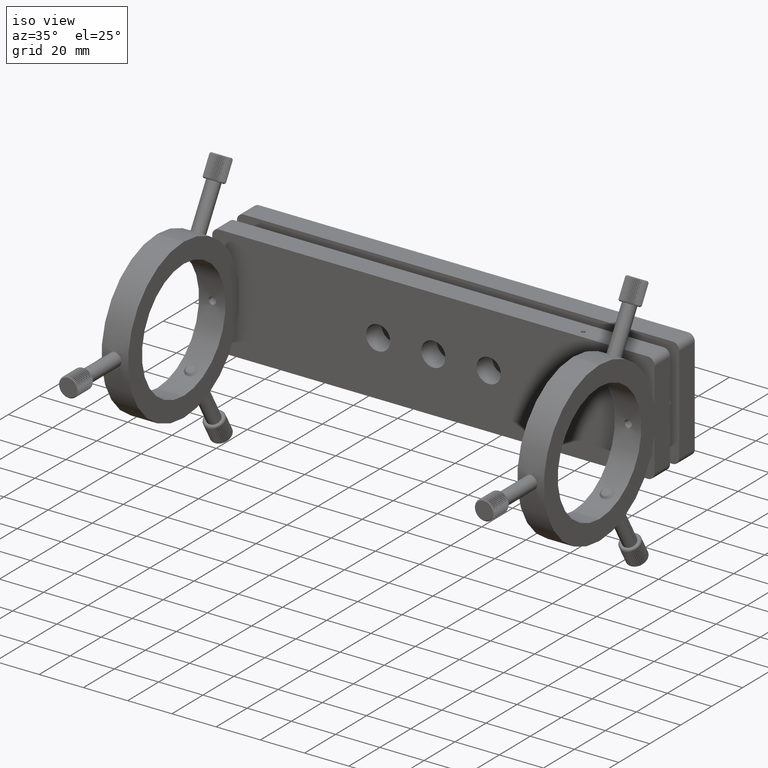
[diagram: clean part render]
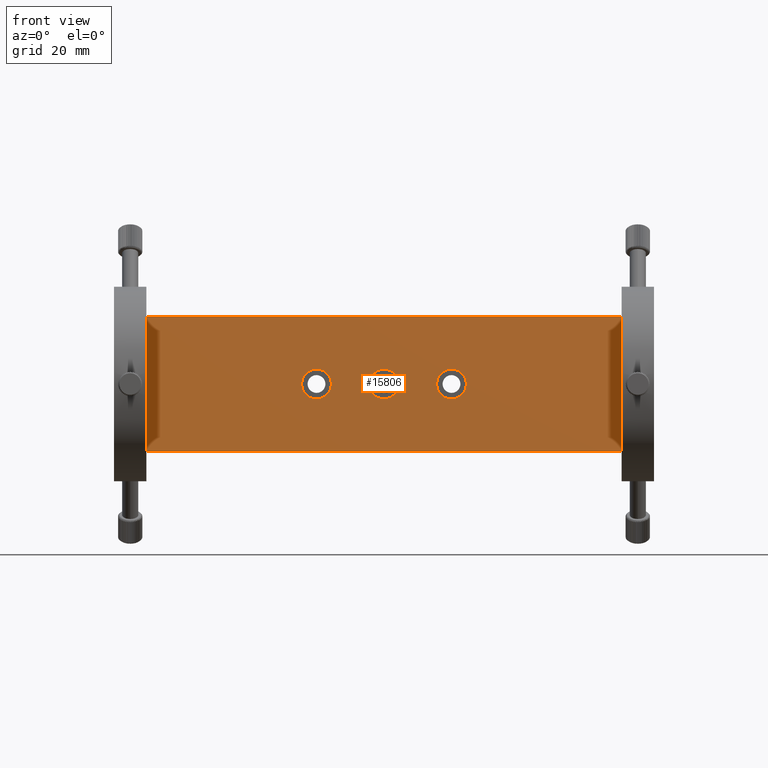
[diagram: tour spotlight — one face highlighted and labeled with its STEP entity id]
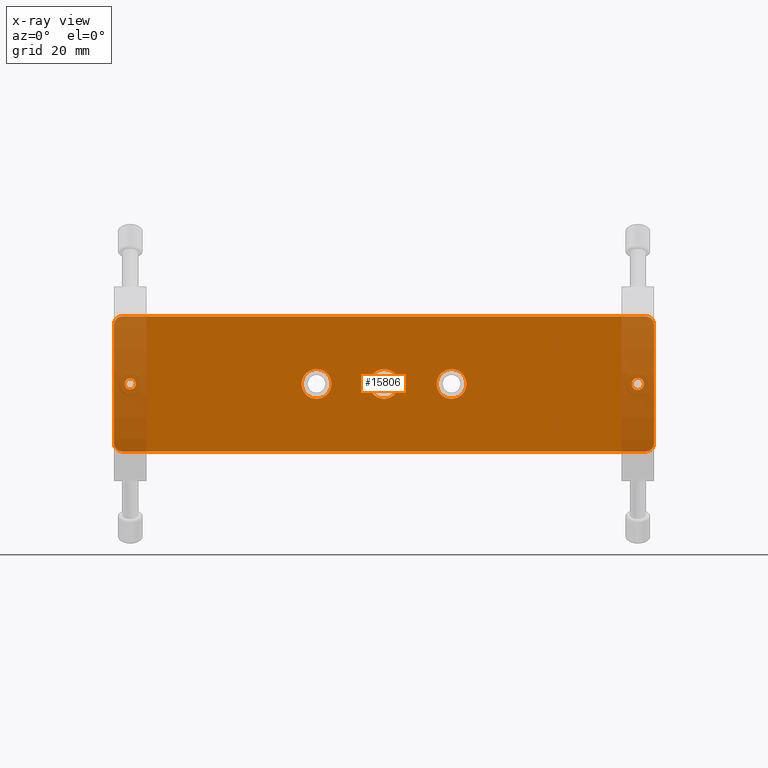
[diagram: x-ray of the same camera — body ghosted, this tour face saturated]
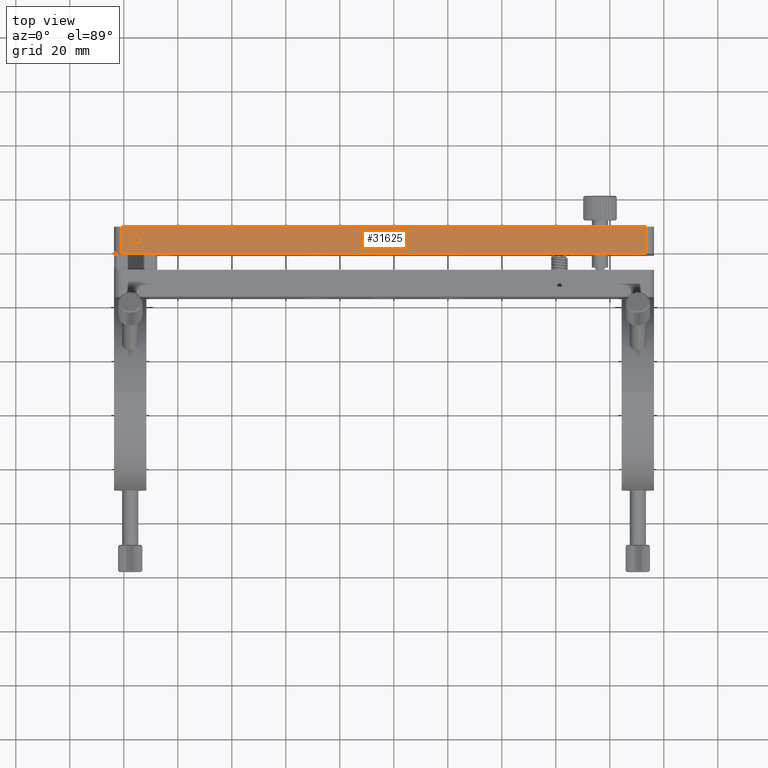
[diagram: tour spotlight — one face highlighted and labeled with its STEP entity id]
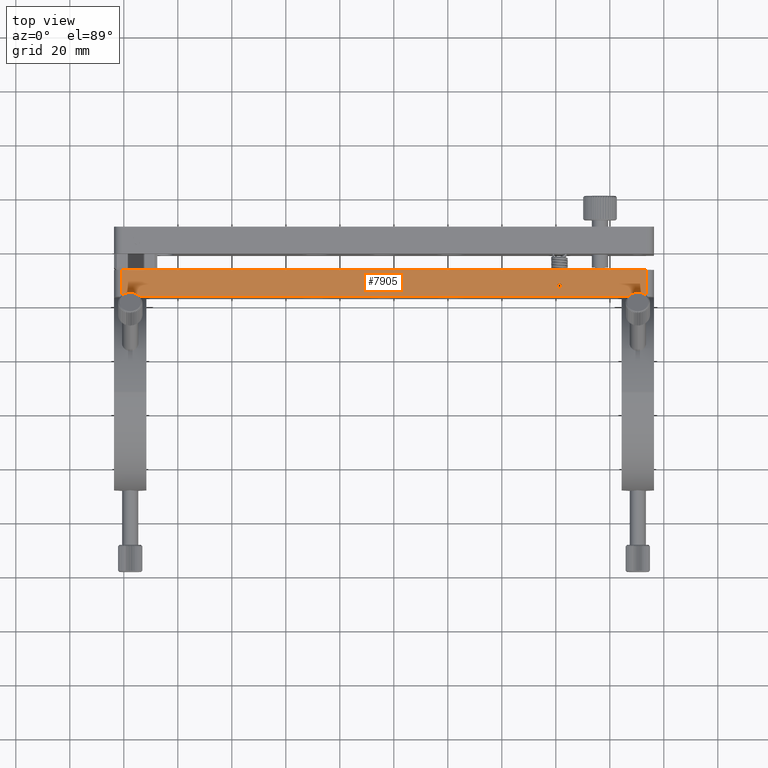
[diagram: tour spotlight — one face highlighted and labeled with its STEP entity id]
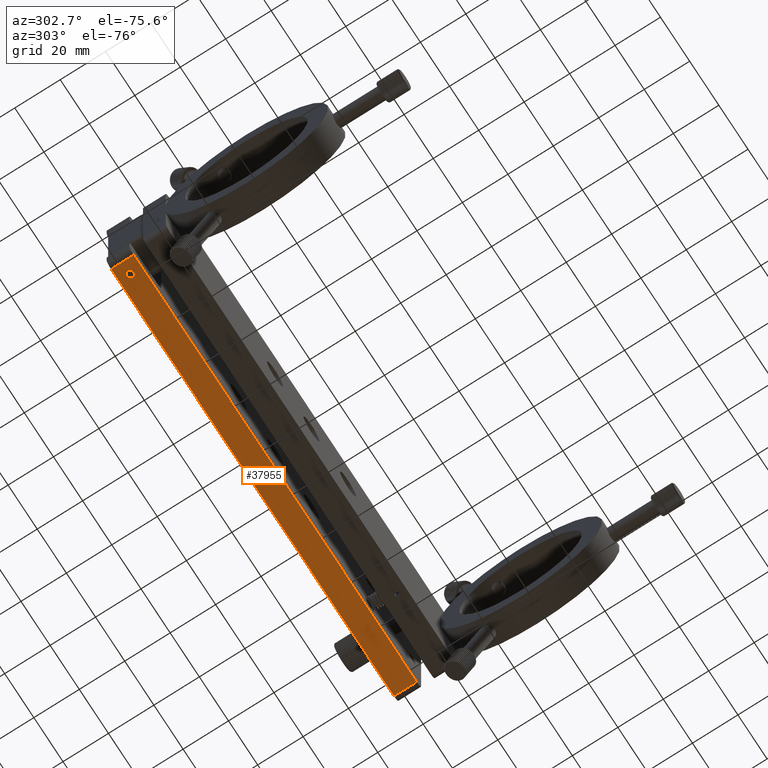
[diagram: tour spotlight — one face highlighted and labeled with its STEP entity id]
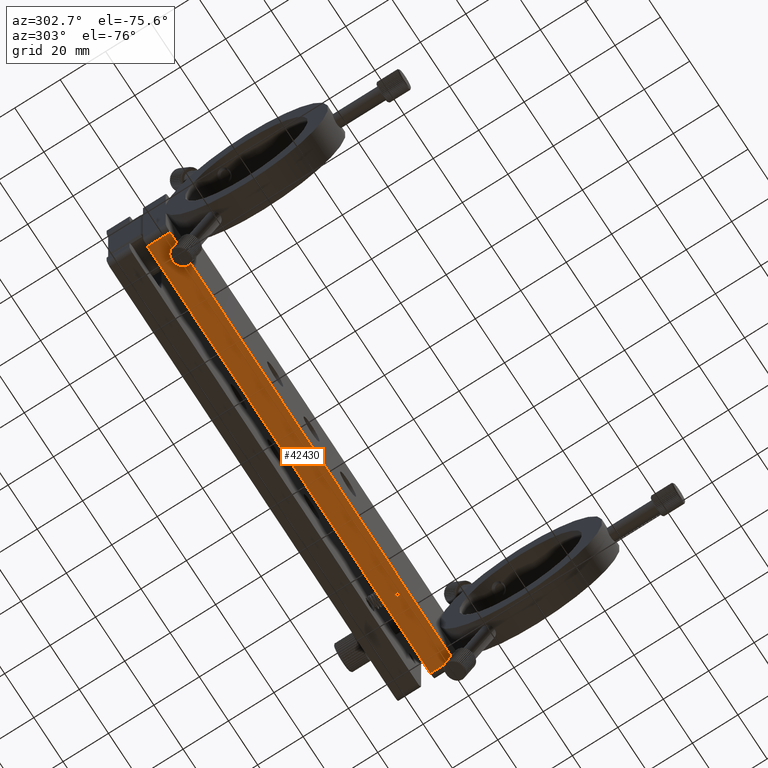
[diagram: tour spotlight — one face highlighted and labeled with its STEP entity id]
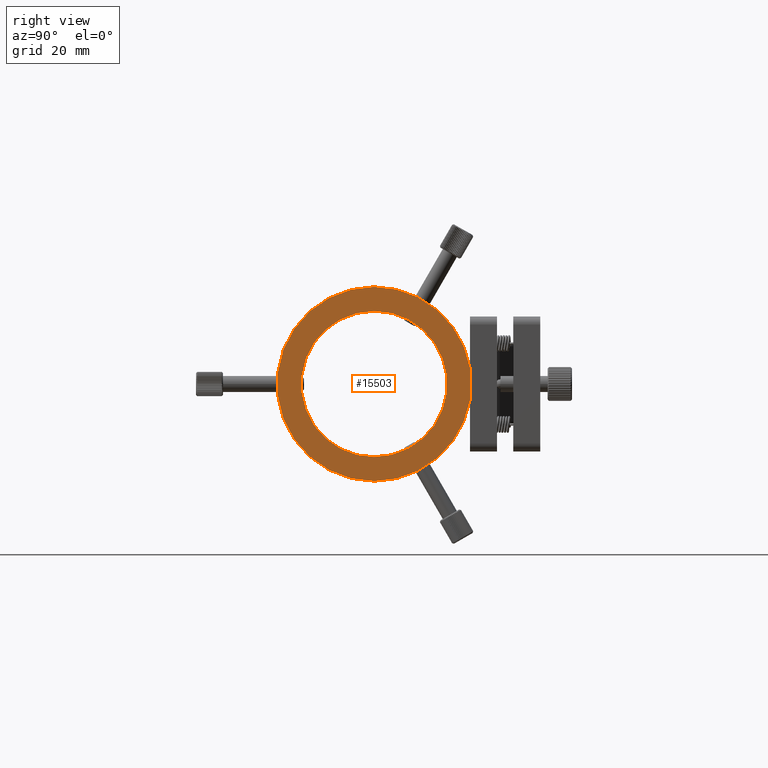
[diagram: tour spotlight — one face highlighted and labeled with its STEP entity id]
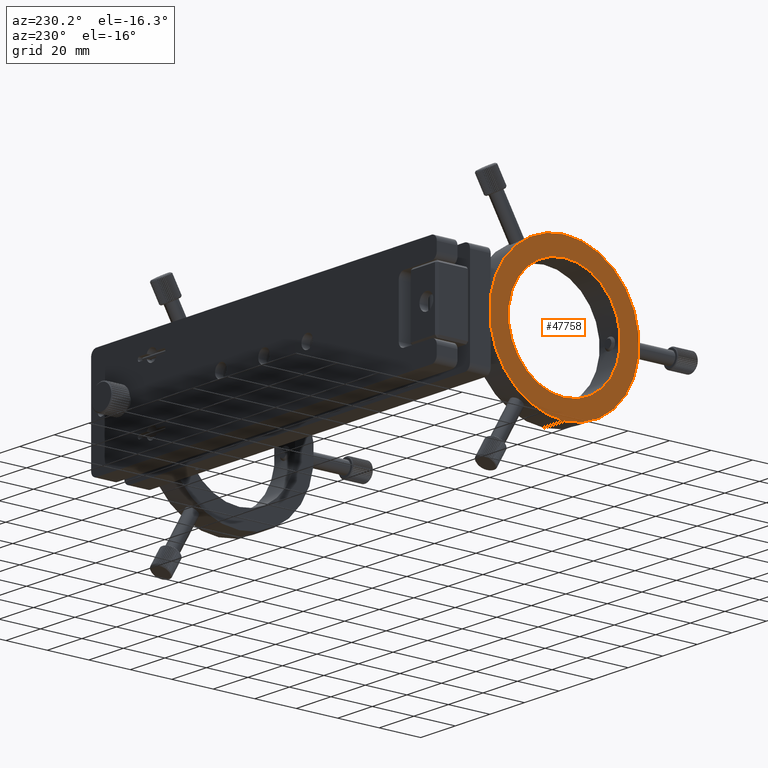
[diagram: tour spotlight — one face highlighted and labeled with its STEP entity id]
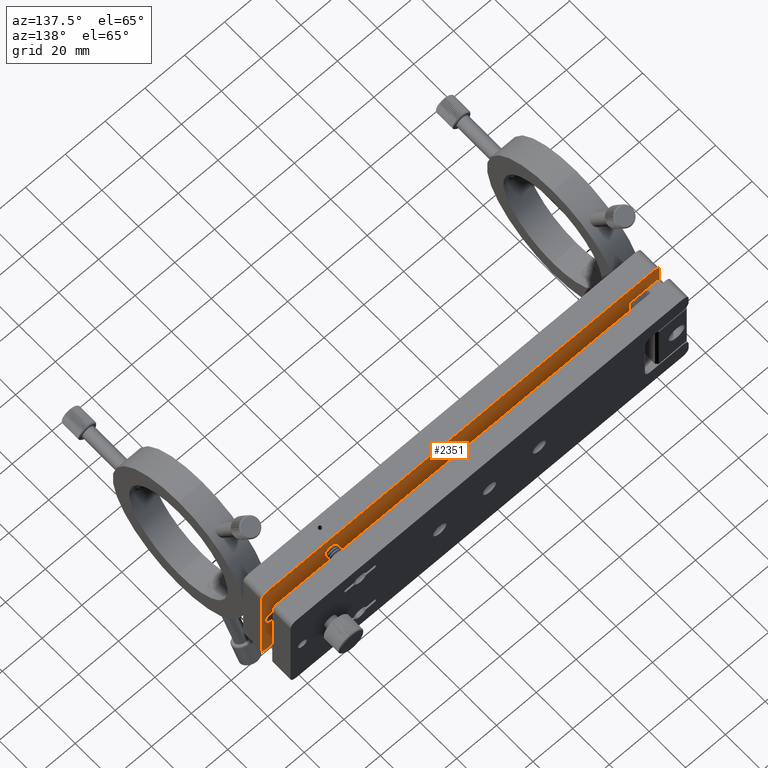
[diagram: tour spotlight — one face highlighted and labeled with its STEP entity id]
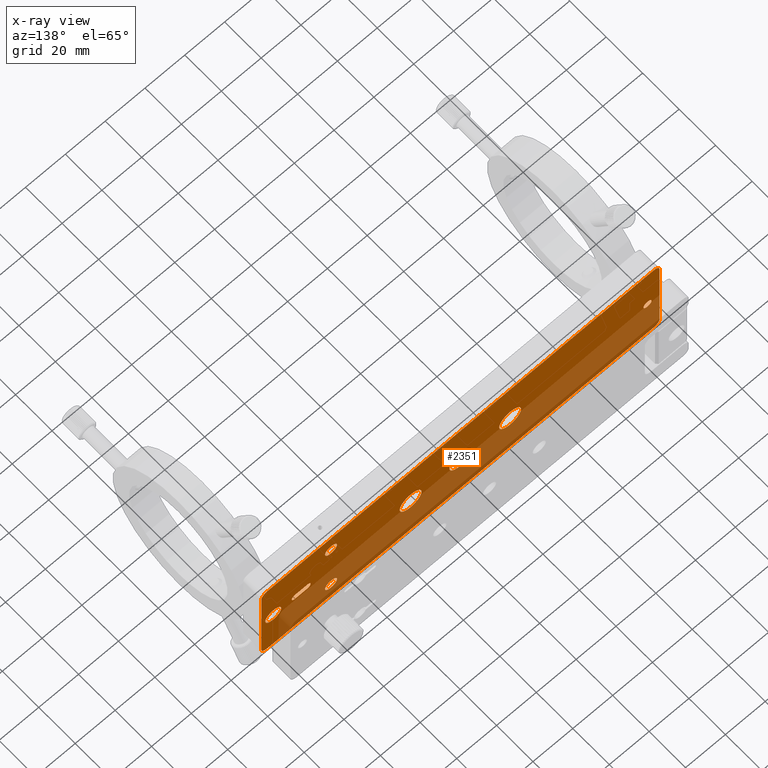
[diagram: x-ray of the same camera — body ghosted, this tour face saturated]
A machine part: a face-by-face anatomy tour. The part has 1213 B-rep faces; the first image is the clean iso view, then the 8 largest visible faces are spotlighted one at a time (largest first), each with its STEP entity span.

Face 1 — front view, entity #15806. An x-ray twin of the same camera follows (body ghosted, this face saturated) — the face is partly hidden behind the body. In plain terms, the highlighted planar face has unit normal (0, 1, 0).
Definition (entity closure, byte-faithful):
#597 = ORIENTED_EDGE ( 'NONE', *, *, #9537, .F. ) ;
#1664 = FACE_BOUND ( 'NONE', #23080, .T. ) ;
#2013 = VERTEX_POINT ( 'NONE', #40598 ) ;
#2170 = CARTESIAN_POINT ( 'NONE',  ( 90.36693914623076300, -17.41295791704509500, 0.0000000000000000000 ) ) ;
#2517 = CARTESIAN_POINT ( 'NONE',  ( -100.6330608537691800, -17.41295791704509500, 22.00000000000000000 ) ) ;
#2544 = AXIS2_PLACEMENT_3D ( 'NONE', #22477, #18983, #30256 ) ;
#2558 = VERTEX_POINT ( 'NONE', #27571 ) ;
#2745 = ORIENTED_EDGE ( 'NONE', *, *, #40232, .T. ) ;
#2885 = ORIENTED_EDGE ( 'NONE', *, *, #8555, .F. ) ;
#3003 = AXIS2_PLACEMENT_3D ( 'NONE', #2517, #6000, #20723 ) ;
#3598 = DIRECTION ( 'NONE',  ( 0.0000000000000000000, 1.000000000000000000, 0.0000000000000000000 ) ) ;
#3753 = CARTESIAN_POINT ( 'NONE',  ( -97.63306085376923700, -17.41295791704509500, 0.0000000000000000000 ) ) ;
#4073 = DIRECTION ( 'NONE',  ( 0.0000000000000000000, 0.0000000000000000000, 1.000000000000000000 ) ) ;
#4340 = DIRECTION ( 'NONE',  ( 0.0000000000000000000, 0.0000000000000000000, -1.000000000000000000 ) ) ;
#4464 = AXIS2_PLACEMENT_3D ( 'NONE', #22451, #22750, #4073 ) ;
#4502 = DIRECTION ( 'NONE',  ( 0.0000000000000000000, 0.0000000000000000000, 1.000000000000000000 ) ) ;
#5295 = ORIENTED_EDGE ( 'NONE', *, *, #24887, .T. ) ;
#5474 = CARTESIAN_POINT ( 'NONE',  ( -100.6330608537691800, -17.41295791704509500, 25.00000000000000000 ) ) ;
#5551 = CIRCLE ( 'NONE', #4464, 5.499999999999998200 ) ;
#5840 = CIRCLE ( 'NONE', #23122, 5.499999999999998200 ) ;
#6000 = DIRECTION ( 'NONE',  ( 0.0000000000000000000, 1.000000000000000000, 0.0000000000000000000 ) ) ;
#6298 = DIRECTION ( 'NONE',  ( 0.0000000000000000000, 1.000000000000000000, 0.0000000000000000000 ) ) ;
#6534 = CIRCLE ( 'NONE', #9468, 2.049999999999996300 ) ;
#6758 = CIRCLE ( 'NONE', #46509, 5.499999999999998200 ) ;
#7226 = VECTOR ( 'NONE', #27432, 1000.000000000000000 ) ;
#7513 = ORIENTED_EDGE ( 'NONE', *, *, #17840, .F. ) ;
#7705 = CARTESIAN_POINT ( 'NONE',  ( -3.633060853769243300, -17.41295791704509100, 0.0000000000000000000 ) ) ;
#7802 = CIRCLE ( 'NONE', #41272, 5.499999999999998200 ) ;
#7953 = LINE ( 'NONE', #38314, #46779 ) ;
#8084 = DIRECTION ( 'NONE',  ( 0.0000000000000000000, 1.000000000000000000, 0.0000000000000000000 ) ) ;
#8090 = CIRCLE ( 'NONE', #42086, 5.499999999999998200 ) ;
#8102 = AXIS2_PLACEMENT_3D ( 'NONE', #9899, #6298, #21370 ) ;
#8344 = AXIS2_PLACEMENT_3D ( 'NONE', #37406, #14868, #41219 ) ;
#8555 = EDGE_CURVE ( 'NONE', #26845, #46494, #15039, .T. ) ;
#8724 = FACE_BOUND ( 'NONE', #37824, .T. ) ;
#8738 = DIRECTION ( 'NONE',  ( -0.0000000000000000000, 1.000000000000000000, -0.0000000000000000000 ) ) ;
#8866 = EDGE_CURVE ( 'NONE', #39826, #25423, #25056, .T. ) ;
#9468 = AXIS2_PLACEMENT_3D ( 'NONE', #3753, #3598, #25761 ) ;
#9537 = EDGE_CURVE ( 'NONE', #12726, #2558, #7953, .T. ) ;
#9553 = DIRECTION ( 'NONE',  ( -0.0000000000000000000, -0.0000000000000000000, 1.000000000000000000 ) ) ;
#9834 = VERTEX_POINT ( 'NONE', #13453 ) ;
#9890 = FACE_BOUND ( 'NONE', #48009, .T. ) ;
#9899 = CARTESIAN_POINT ( 'NONE',  ( -100.6330608537691800, -17.41295791704509500, -22.00000000000000000 ) ) ;
#10471 = CARTESIAN_POINT ( 'NONE',  ( 21.36693914623075900, -17.41295791704509100, -5.499999999999998200 ) ) ;
#10514 = FACE_BOUND ( 'NONE', #11304, .T. ) ;
#10654 = EDGE_CURVE ( 'NONE', #36500, #2013, #5551, .T. ) ;
#10758 = LINE ( 'NONE', #5474, #7226 ) ;
#11304 = EDGE_LOOP ( 'NONE', ( #14113, #28032 ) ) ;
#11428 = EDGE_CURVE ( 'NONE', #30881, #33555, #10758, .T. ) ;
#12173 = CARTESIAN_POINT ( 'NONE',  ( -100.6330608537691800, -17.41295791704509500, -25.00000000000000000 ) ) ;
#12726 = VERTEX_POINT ( 'NONE', #27622 ) ;
#13019 = ORIENTED_EDGE ( 'NONE', *, *, #14275, .F. ) ;
#13329 = ORIENTED_EDGE ( 'NONE', *, *, #17849, .T. ) ;
#13453 = CARTESIAN_POINT ( 'NONE',  ( 90.36693914623076300, -17.41295791704509500, 2.250000000000001800 ) ) ;
#14113 = ORIENTED_EDGE ( 'NONE', *, *, #29696, .T. ) ;
#14146 = VERTEX_POINT ( 'NONE', #25598 ) ;
#14236 = VERTEX_POINT ( 'NONE', #10471 ) ;
#14275 = EDGE_CURVE ( 'NONE', #25423, #30881, #33550, .T. ) ;
#14492 = CARTESIAN_POINT ( 'NONE',  ( -3.633060853769242400, -17.41295791704509100, -5.499999999999998200 ) ) ;
#14695 = AXIS2_PLACEMENT_3D ( 'NONE', #2170, #20861, #47253 ) ;
#14868 = DIRECTION ( 'NONE',  ( 0.0000000000000000000, 1.000000000000000000, 0.0000000000000000000 ) ) ;
#14925 = AXIS2_PLACEMENT_3D ( 'NONE', #37846, #34406, #4502 ) ;
#15039 = LINE ( 'NONE', #12173, #42726 ) ;
#15494 = AXIS2_PLACEMENT_3D ( 'NONE', #26981, #45723, #23176 ) ;
#15806 = ADVANCED_FACE ( 'NONE', ( #10514, #1664, #8724, #39306, #9890, #32276 ), #17113, .F. ) ;
#15885 = CARTESIAN_POINT ( 'NONE',  ( -103.6330608537691400, -17.41295791704509500, 22.00000000000000000 ) ) ;
#17113 = PLANE ( 'NONE',  #3003 ) ;
#17365 = CIRCLE ( 'NONE', #8102, 2.999999999999981800 ) ;
#17840 = EDGE_CURVE ( 'NONE', #46494, #39826, #17365, .T. ) ;
#17849 = EDGE_CURVE ( 'NONE', #9834, #14146, #38573, .T. ) ;
#18983 = DIRECTION ( 'NONE',  ( 0.0000000000000000000, 1.000000000000000000, 0.0000000000000000000 ) ) ;
#19344 = ORIENTED_EDGE ( 'NONE', *, *, #24159, .T. ) ;
#19627 = CARTESIAN_POINT ( 'NONE',  ( -3.633060853769243300, -17.41295791704509100, 5.499999999999998200 ) ) ;
#20367 = CARTESIAN_POINT ( 'NONE',  ( -103.6330608537691700, -17.41295791704509500, -22.00000000000000000 ) ) ;
#20476 = EDGE_LOOP ( 'NONE', ( #13019, #23816, #7513, #2885, #29717, #597, #38928, #24328 ) ) ;
#20723 = DIRECTION ( 'NONE',  ( 0.0000000000000000000, -0.0000000000000000000, 1.000000000000000000 ) ) ;
#20861 = DIRECTION ( 'NONE',  ( 0.0000000000000000000, 1.000000000000000000, 0.0000000000000000000 ) ) ;
#21370 = DIRECTION ( 'NONE',  ( 0.0000000000000000000, 0.0000000000000000000, 1.000000000000000000 ) ) ;
#21486 = DIRECTION ( 'NONE',  ( 0.0000000000000000000, 0.0000000000000000000, 1.000000000000000000 ) ) ;
#22451 = CARTESIAN_POINT ( 'NONE',  ( -28.63306085376924400, -17.41295791704509100, 0.0000000000000000000 ) ) ;
#22477 = CARTESIAN_POINT ( 'NONE',  ( -97.63306085376923700, -17.41295791704509500, 0.0000000000000000000 ) ) ;
#22750 = DIRECTION ( 'NONE',  ( -0.0000000000000000000, 1.000000000000000000, -0.0000000000000000000 ) ) ;
#23080 = EDGE_LOOP ( 'NONE', ( #28168, #26853 ) ) ;
#23122 = AXIS2_PLACEMENT_3D ( 'NONE', #47464, #28564, #39865 ) ;
#23171 = CARTESIAN_POINT ( 'NONE',  ( 21.36693914623075900, -17.41295791704509100, 5.499999999999998200 ) ) ;
#23176 = DIRECTION ( 'NONE',  ( 0.0000000000000000000, 0.0000000000000000000, 1.000000000000000000 ) ) ;
#23792 = CIRCLE ( 'NONE', #14925, 2.999999999999981800 ) ;
#23816 = ORIENTED_EDGE ( 'NONE', *, *, #8866, .F. ) ;
#24159 = EDGE_CURVE ( 'NONE', #14146, #9834, #24905, .T. ) ;
#24328 = ORIENTED_EDGE ( 'NONE', *, *, #11428, .F. ) ;
#24887 = EDGE_CURVE ( 'NONE', #41297, #14236, #7802, .T. ) ;
#24905 = CIRCLE ( 'NONE', #26135, 2.250000000000001800 ) ;
#25056 = LINE ( 'NONE', #39931, #43295 ) ;
#25314 = DIRECTION ( 'NONE',  ( -0.0000000000000000000, 1.000000000000000000, -0.0000000000000000000 ) ) ;
#25423 = VERTEX_POINT ( 'NONE', #15885 ) ;
#25598 = CARTESIAN_POINT ( 'NONE',  ( 90.36693914623076300, -17.41295791704509500, -2.250000000000001800 ) ) ;
#25761 = DIRECTION ( 'NONE',  ( 0.0000000000000000000, 0.0000000000000000000, 1.000000000000000000 ) ) ;
#26135 = AXIS2_PLACEMENT_3D ( 'NONE', #45191, #48648, #37459 ) ;
#26379 = ORIENTED_EDGE ( 'NONE', *, *, #45649, .T. ) ;
#26436 = DIRECTION ( 'NONE',  ( 0.0000000000000000000, 0.0000000000000000000, 1.000000000000000000 ) ) ;
#26514 = VERTEX_POINT ( 'NONE', #37902 ) ;
#26845 = VERTEX_POINT ( 'NONE', #40200 ) ;
#26853 = ORIENTED_EDGE ( 'NONE', *, *, #32562, .T. ) ;
#26981 = CARTESIAN_POINT ( 'NONE',  ( -28.63306085376924400, -17.41295791704509100, 0.0000000000000000000 ) ) ;
#27163 = DIRECTION ( 'NONE',  ( -1.000000000000000000, -0.0000000000000000000, -0.0000000000000000000 ) ) ;
#27432 = DIRECTION ( 'NONE',  ( 1.000000000000000000, 0.0000000000000000000, 0.0000000000000000000 ) ) ;
#27571 = CARTESIAN_POINT ( 'NONE',  ( 96.36693914623064900, -17.41295791704509500, -22.00000000000000000 ) ) ;
#27622 = CARTESIAN_POINT ( 'NONE',  ( 96.36693914623067800, -17.41295791704509500, 22.00000000000000000 ) ) ;
#27694 = CARTESIAN_POINT ( 'NONE',  ( -100.6330608537691800, -17.41295791704509500, -25.00000000000000000 ) ) ;
#27941 = ORIENTED_EDGE ( 'NONE', *, *, #46011, .T. ) ;
#28032 = ORIENTED_EDGE ( 'NONE', *, *, #10654, .T. ) ;
#28168 = ORIENTED_EDGE ( 'NONE', *, *, #38795, .T. ) ;
#28564 = DIRECTION ( 'NONE',  ( -0.0000000000000000000, 1.000000000000000000, -0.0000000000000000000 ) ) ;
#29696 = EDGE_CURVE ( 'NONE', #2013, #36500, #37495, .T. ) ;
#29717 = ORIENTED_EDGE ( 'NONE', *, *, #32064, .F. ) ;
#30256 = DIRECTION ( 'NONE',  ( 0.0000000000000000000, 0.0000000000000000000, 1.000000000000000000 ) ) ;
#30881 = VERTEX_POINT ( 'NONE', #30959 ) ;
#30959 = CARTESIAN_POINT ( 'NONE',  ( -100.6330608537691800, -17.41295791704509500, 25.00000000000000000 ) ) ;
#31803 = VERTEX_POINT ( 'NONE', #14492 ) ;
#32064 = EDGE_CURVE ( 'NONE', #2558, #26845, #23792, .T. ) ;
#32276 = FACE_OUTER_BOUND ( 'NONE', #20476, .T. ) ;
#32562 = EDGE_CURVE ( 'NONE', #31803, #41711, #6758, .T. ) ;
#33227 = VERTEX_POINT ( 'NONE', #42432 ) ;
#33521 = CIRCLE ( 'NONE', #36822, 2.999999999999981800 ) ;
#33550 = CIRCLE ( 'NONE', #8344, 2.999999999999981800 ) ;
#33555 = VERTEX_POINT ( 'NONE', #36474 ) ;
#34318 = DIRECTION ( 'NONE',  ( -0.0000000000000000000, 1.000000000000000000, -0.0000000000000000000 ) ) ;
#34406 = DIRECTION ( 'NONE',  ( 0.0000000000000000000, 1.000000000000000000, 0.0000000000000000000 ) ) ;
#36474 = CARTESIAN_POINT ( 'NONE',  ( 93.36693914623069200, -17.41295791704509500, 25.00000000000000000 ) ) ;
#36500 = VERTEX_POINT ( 'NONE', #44579 ) ;
#36822 = AXIS2_PLACEMENT_3D ( 'NONE', #42106, #8084, #41792 ) ;
#37406 = CARTESIAN_POINT ( 'NONE',  ( -100.6330608537691800, -17.41295791704509500, 22.00000000000000000 ) ) ;
#37459 = DIRECTION ( 'NONE',  ( 0.0000000000000000000, 0.0000000000000000000, 1.000000000000000000 ) ) ;
#37495 = CIRCLE ( 'NONE', #15494, 5.499999999999998200 ) ;
#37824 = EDGE_LOOP ( 'NONE', ( #5295, #2745 ) ) ;
#37846 = CARTESIAN_POINT ( 'NONE',  ( 93.36693914623069200, -17.41295791704509500, -22.00000000000000000 ) ) ;
#37902 = CARTESIAN_POINT ( 'NONE',  ( -97.63306085376923700, -17.41295791704509500, 2.049999999999996300 ) ) ;
#38132 = DIRECTION ( 'NONE',  ( 0.0000000000000000000, 0.0000000000000000000, 1.000000000000000000 ) ) ;
#38314 = CARTESIAN_POINT ( 'NONE',  ( 96.36693914623064900, -17.41295791704509500, 22.00000000000000000 ) ) ;
#38573 = CIRCLE ( 'NONE', #14695, 2.250000000000001800 ) ;
#38795 = EDGE_CURVE ( 'NONE', #41711, #31803, #5840, .T. ) ;
#38928 = ORIENTED_EDGE ( 'NONE', *, *, #45146, .F. ) ;
#39306 = FACE_BOUND ( 'NONE', #40764, .T. ) ;
#39826 = VERTEX_POINT ( 'NONE', #20367 ) ;
#39865 = DIRECTION ( 'NONE',  ( 0.0000000000000000000, 0.0000000000000000000, 1.000000000000000000 ) ) ;
#39931 = CARTESIAN_POINT ( 'NONE',  ( -103.6330608537691400, -17.41295791704509500, 22.00000000000000000 ) ) ;
#40200 = CARTESIAN_POINT ( 'NONE',  ( 93.36693914623069200, -17.41295791704509500, -24.99999999999998200 ) ) ;
#40232 = EDGE_CURVE ( 'NONE', #14236, #41297, #8090, .T. ) ;
#40598 = CARTESIAN_POINT ( 'NONE',  ( -28.63306085376924400, -17.41295791704509100, 5.499999999999998200 ) ) ;
#40764 = EDGE_LOOP ( 'NONE', ( #26379, #27941 ) ) ;
#41219 = DIRECTION ( 'NONE',  ( 0.0000000000000000000, 0.0000000000000000000, 1.000000000000000000 ) ) ;
#41272 = AXIS2_PLACEMENT_3D ( 'NONE', #42756, #25314, #21486 ) ;
#41297 = VERTEX_POINT ( 'NONE', #23171 ) ;
#41711 = VERTEX_POINT ( 'NONE', #19627 ) ;
#41792 = DIRECTION ( 'NONE',  ( 0.0000000000000000000, 0.0000000000000000000, 1.000000000000000000 ) ) ;
#42086 = AXIS2_PLACEMENT_3D ( 'NONE', #42451, #8738, #38132 ) ;
#42106 = CARTESIAN_POINT ( 'NONE',  ( 93.36693914623069200, -17.41295791704509500, 22.00000000000000000 ) ) ;
#42432 = CARTESIAN_POINT ( 'NONE',  ( -97.63306085376923700, -17.41295791704509500, -2.049999999999996300 ) ) ;
#42451 = CARTESIAN_POINT ( 'NONE',  ( 21.36693914623075900, -17.41295791704509100, 0.0000000000000000000 ) ) ;
#42466 = CIRCLE ( 'NONE', #2544, 2.049999999999996300 ) ;
#42726 = VECTOR ( 'NONE', #27163, 1000.000000000000000 ) ;
#42756 = CARTESIAN_POINT ( 'NONE',  ( 21.36693914623075900, -17.41295791704509100, 0.0000000000000000000 ) ) ;
#43295 = VECTOR ( 'NONE', #9553, 1000.000000000000000 ) ;
#44579 = CARTESIAN_POINT ( 'NONE',  ( -28.63306085376924400, -17.41295791704509100, -5.499999999999998200 ) ) ;
#45146 = EDGE_CURVE ( 'NONE', #33555, #12726, #33521, .T. ) ;
#45191 = CARTESIAN_POINT ( 'NONE',  ( 90.36693914623076300, -17.41295791704509500, 0.0000000000000000000 ) ) ;
#45649 = EDGE_CURVE ( 'NONE', #26514, #33227, #42466, .T. ) ;
#45723 = DIRECTION ( 'NONE',  ( -0.0000000000000000000, 1.000000000000000000, -0.0000000000000000000 ) ) ;
#46011 = EDGE_CURVE ( 'NONE', #33227, #26514, #6534, .T. ) ;
#46494 = VERTEX_POINT ( 'NONE', #27694 ) ;
#46509 = AXIS2_PLACEMENT_3D ( 'NONE', #7705, #34318, #26436 ) ;
#46779 = VECTOR ( 'NONE', #4340, 1000.000000000000000 ) ;
#47253 = DIRECTION ( 'NONE',  ( 0.0000000000000000000, 0.0000000000000000000, 1.000000000000000000 ) ) ;
#47464 = CARTESIAN_POINT ( 'NONE',  ( -3.633060853769243300, -17.41295791704509100, 0.0000000000000000000 ) ) ;
#48009 = EDGE_LOOP ( 'NONE', ( #13329, #19344 ) ) ;
#48648 = DIRECTION ( 'NONE',  ( 0.0000000000000000000, 1.000000000000000000, 0.0000000000000000000 ) ) ;

Face 2 — top view, entity #31625. In plain terms, the highlighted planar face has unit normal (-0, -0, -1).
Definition (entity closure, byte-faithful):
#375 = VERTEX_POINT ( 'NONE', #36026 ) ;
#1164 = AXIS2_PLACEMENT_3D ( 'NONE', #36941, #10959, #14386 ) ;
#2051 = CARTESIAN_POINT ( 'NONE',  ( 93.36693914623062100, -1.412957917045105900, 25.00000000000001100 ) ) ;
#2539 = DIRECTION ( 'NONE',  ( -5.579729118605798100E-018, -9.593664196835669600E-017, -1.000000000000000000 ) ) ;
#3013 = AXIS2_PLACEMENT_3D ( 'NONE', #47602, #2539, #25393 ) ;
#4693 = VECTOR ( 'NONE', #7904, 1000.000000000000000 ) ;
#5385 = ORIENTED_EDGE ( 'NONE', *, *, #32912, .T. ) ;
#5509 = VERTEX_POINT ( 'NONE', #45223 ) ;
#7904 = DIRECTION ( 'NONE',  ( 2.209601736609701800E-017, 1.000000000000000000, -9.593664196835668400E-017 ) ) ;
#8114 = CARTESIAN_POINT ( 'NONE',  ( 93.36693914623062100, -1.412957917045105900, 25.00000000000001100 ) ) ;
#8560 = CARTESIAN_POINT ( 'NONE',  ( -100.6330608537692100, -1.412957917045104100, 25.00000000000002100 ) ) ;
#10959 = DIRECTION ( 'NONE',  ( -1.665334536937734800E-016, -9.593664196835669600E-017, -1.000000000000000000 ) ) ;
#11666 = EDGE_LOOP ( 'NONE', ( #38520, #14246, #17571, #16842 ) ) ;
#12127 = AXIS2_PLACEMENT_3D ( 'NONE', #14791, #37493, #21871 ) ;
#12611 = FACE_OUTER_BOUND ( 'NONE', #11666, .T. ) ;
#13212 = FACE_BOUND ( 'NONE', #30249, .T. ) ;
#14246 = ORIENTED_EDGE ( 'NONE', *, *, #46793, .F. ) ;
#14386 = DIRECTION ( 'NONE',  ( 1.000000000000000000, 0.0000000000000000000, 0.0000000000000000000 ) ) ;
#14791 = CARTESIAN_POINT ( 'NONE',  ( -95.13306085376923700, 3.587042082954895200, 25.00000000000004600 ) ) ;
#16842 = ORIENTED_EDGE ( 'NONE', *, *, #27069, .T. ) ;
#17571 = ORIENTED_EDGE ( 'NONE', *, *, #35361, .F. ) ;
#21871 = DIRECTION ( 'NONE',  ( 1.000000000000000000, 0.0000000000000000000, 0.0000000000000000000 ) ) ;
#23067 = ORIENTED_EDGE ( 'NONE', *, *, #42935, .T. ) ;
#23446 = CARTESIAN_POINT ( 'NONE',  ( 93.36693914623062100, 8.587042082954893000, 25.00000000000001800 ) ) ;
#24390 = CIRCLE ( 'NONE', #1164, 1.500000000000001300 ) ;
#24395 = DIRECTION ( 'NONE',  ( -1.000000000000000000, 2.209601736609698700E-017, 5.579729118605796500E-018 ) ) ;
#25341 = EDGE_CURVE ( 'NONE', #39175, #45884, #35406, .T. ) ;
#25393 = DIRECTION ( 'NONE',  ( 1.000000000000000000, -2.209601736609698400E-017, -5.579729118605795800E-018 ) ) ;
#26032 = CARTESIAN_POINT ( 'NONE',  ( 93.36693914623062100, -1.412957917045105900, 25.00000000000001100 ) ) ;
#27069 = EDGE_CURVE ( 'NONE', #37935, #39175, #42390, .T. ) ;
#30249 = EDGE_LOOP ( 'NONE', ( #23067, #5385 ) ) ;
#31625 = ADVANCED_FACE ( 'NONE', ( #13212, #12611 ), #40182, .F. ) ;
#31887 = VECTOR ( 'NONE', #35316, 1000.000000000000000 ) ;
#32189 = CARTESIAN_POINT ( 'NONE',  ( -100.6330608537692100, 8.587042082954896600, 25.00000000000002100 ) ) ;
#32912 = EDGE_CURVE ( 'NONE', #5509, #375, #35531, .T. ) ;
#33572 = VECTOR ( 'NONE', #34427, 1000.000000000000000 ) ;
#34427 = DIRECTION ( 'NONE',  ( 2.209601736609701800E-017, 1.000000000000000000, -9.593664196835668400E-017 ) ) ;
#35316 = DIRECTION ( 'NONE',  ( -1.000000000000000000, 2.209601736609698700E-017, 5.579729118605796500E-018 ) ) ;
#35361 = EDGE_CURVE ( 'NONE', #37935, #40079, #47165, .T. ) ;
#35406 = LINE ( 'NONE', #23446, #31887 ) ;
#35531 = CIRCLE ( 'NONE', #12127, 1.500000000000001300 ) ;
#36026 = CARTESIAN_POINT ( 'NONE',  ( -93.63306085376923700, 3.587042082954895200, 25.00000000000004600 ) ) ;
#36468 = LINE ( 'NONE', #8560, #4693 ) ;
#36758 = CARTESIAN_POINT ( 'NONE',  ( 93.36693914623062100, 8.587042082954893000, 25.00000000000001800 ) ) ;
#36941 = CARTESIAN_POINT ( 'NONE',  ( -95.13306085376923700, 3.587042082954895200, 25.00000000000004600 ) ) ;
#37493 = DIRECTION ( 'NONE',  ( -1.665334536937734800E-016, -9.593664196835669600E-017, -1.000000000000000000 ) ) ;
#37521 = CARTESIAN_POINT ( 'NONE',  ( -100.6330608537692100, -1.412957917045104100, 25.00000000000002100 ) ) ;
#37935 = VERTEX_POINT ( 'NONE', #26032 ) ;
#38520 = ORIENTED_EDGE ( 'NONE', *, *, #25341, .T. ) ;
#39175 = VERTEX_POINT ( 'NONE', #36758 ) ;
#40079 = VERTEX_POINT ( 'NONE', #37521 ) ;
#40182 = PLANE ( 'NONE',  #3013 ) ;
#42390 = LINE ( 'NONE', #8114, #33572 ) ;
#42935 = EDGE_CURVE ( 'NONE', #375, #5509, #24390, .T. ) ;
#45223 = CARTESIAN_POINT ( 'NONE',  ( -96.63306085376923700, 3.587042082954894800, 25.00000000000004600 ) ) ;
#45884 = VERTEX_POINT ( 'NONE', #32189 ) ;
#46579 = VECTOR ( 'NONE', #24395, 1000.000000000000000 ) ;
#46793 = EDGE_CURVE ( 'NONE', #40079, #45884, #36468, .T. ) ;
#47165 = LINE ( 'NONE', #2051, #46579 ) ;
#47602 = CARTESIAN_POINT ( 'NONE',  ( 93.36693914623062100, -1.412957917045105900, 25.00000000000001100 ) ) ;

Face 3 — top view, entity #7905. In plain terms, the highlighted planar face has unit normal (0, 0, -1).
Definition (entity closure, byte-faithful):
#1303 = VERTEX_POINT ( 'NONE', #3515 ) ;
#1426 = DIRECTION ( 'NONE',  ( -0.0000000000000000000, -1.000000000000000000, -0.0000000000000000000 ) ) ;
#1729 = CARTESIAN_POINT ( 'NONE',  ( -100.6330608537691800, -7.412957917045094500, 25.00000000000000000 ) ) ;
#1865 = EDGE_LOOP ( 'NONE', ( #12383, #23498, #47140, #2396 ) ) ;
#2396 = ORIENTED_EDGE ( 'NONE', *, *, #45785, .T. ) ;
#2559 = CARTESIAN_POINT ( 'NONE',  ( 93.36693914623069200, -7.412957917045094500, 25.00000000000000000 ) ) ;
#3515 = CARTESIAN_POINT ( 'NONE',  ( -100.6330608537691800, -7.412957917045094500, 25.00000000000000000 ) ) ;
#5474 = CARTESIAN_POINT ( 'NONE',  ( -100.6330608537691800, -17.41295791704509500, 25.00000000000000000 ) ) ;
#5539 = DIRECTION ( 'NONE',  ( 1.000000000000000000, 0.0000000000000000000, 0.0000000000000000000 ) ) ;
#6604 = DIRECTION ( 'NONE',  ( 0.0000000000000000000, 0.0000000000000000000, -1.000000000000000000 ) ) ;
#7111 = VECTOR ( 'NONE', #32513, 1000.000000000000000 ) ;
#7226 = VECTOR ( 'NONE', #27432, 1000.000000000000000 ) ;
#7426 = DIRECTION ( 'NONE',  ( 1.000000000000000000, 0.0000000000000000000, 0.0000000000000000000 ) ) ;
#7663 = LINE ( 'NONE', #2559, #7111 ) ;
#7905 = ADVANCED_FACE ( 'NONE', ( #17969, #32174 ), #10043, .F. ) ;
#8577 = DIRECTION ( 'NONE',  ( 1.000000000000000000, 0.0000000000000000000, 0.0000000000000000000 ) ) ;
#9966 = AXIS2_PLACEMENT_3D ( 'NONE', #45894, #38609, #8577 ) ;
#10043 = PLANE ( 'NONE',  #29765 ) ;
#10243 = CARTESIAN_POINT ( 'NONE',  ( 62.26693914623076200, -13.41295791704509600, 25.00000000000000000 ) ) ;
#10488 = LINE ( 'NONE', #1729, #12811 ) ;
#10639 = CARTESIAN_POINT ( 'NONE',  ( 93.36693914623069200, -7.412957917045094500, 25.00000000000000000 ) ) ;
#10758 = LINE ( 'NONE', #5474, #7226 ) ;
#11428 = EDGE_CURVE ( 'NONE', #30881, #33555, #10758, .T. ) ;
#12383 = ORIENTED_EDGE ( 'NONE', *, *, #11428, .T. ) ;
#12412 = ORIENTED_EDGE ( 'NONE', *, *, #27500, .F. ) ;
#12811 = VECTOR ( 'NONE', #5539, 1000.000000000000000 ) ;
#17969 = FACE_BOUND ( 'NONE', #22261, .T. ) ;
#22261 = EDGE_LOOP ( 'NONE', ( #12412, #35163 ) ) ;
#23498 = ORIENTED_EDGE ( 'NONE', *, *, #26792, .F. ) ;
#26792 = EDGE_CURVE ( 'NONE', #44198, #33555, #7663, .T. ) ;
#27132 = LINE ( 'NONE', #31223, #33606 ) ;
#27432 = DIRECTION ( 'NONE',  ( 1.000000000000000000, 0.0000000000000000000, 0.0000000000000000000 ) ) ;
#27500 = EDGE_CURVE ( 'NONE', #29297, #45253, #42964, .T. ) ;
#28399 = EDGE_CURVE ( 'NONE', #1303, #44198, #10488, .T. ) ;
#29297 = VERTEX_POINT ( 'NONE', #10243 ) ;
#29765 = AXIS2_PLACEMENT_3D ( 'NONE', #36978, #6604, #40610 ) ;
#30881 = VERTEX_POINT ( 'NONE', #30959 ) ;
#30959 = CARTESIAN_POINT ( 'NONE',  ( -100.6330608537691800, -17.41295791704509500, 25.00000000000000000 ) ) ;
#31223 = CARTESIAN_POINT ( 'NONE',  ( -100.6330608537691800, -7.412957917045094500, 25.00000000000000000 ) ) ;
#32174 = FACE_OUTER_BOUND ( 'NONE', #1865, .T. ) ;
#32513 = DIRECTION ( 'NONE',  ( -0.0000000000000000000, -1.000000000000000000, -0.0000000000000000000 ) ) ;
#33555 = VERTEX_POINT ( 'NONE', #36474 ) ;
#33606 = VECTOR ( 'NONE', #1426, 1000.000000000000000 ) ;
#35163 = ORIENTED_EDGE ( 'NONE', *, *, #41341, .F. ) ;
#36474 = CARTESIAN_POINT ( 'NONE',  ( 93.36693914623069200, -17.41295791704509500, 25.00000000000000000 ) ) ;
#36978 = CARTESIAN_POINT ( 'NONE',  ( -100.6330608537691800, -7.412957917045094500, 25.00000000000000000 ) ) ;
#37185 = DIRECTION ( 'NONE',  ( 0.0000000000000000000, 0.0000000000000000000, 1.000000000000000000 ) ) ;
#38609 = DIRECTION ( 'NONE',  ( 0.0000000000000000000, 0.0000000000000000000, 1.000000000000000000 ) ) ;
#39454 = CARTESIAN_POINT ( 'NONE',  ( 60.46693914623075700, -13.41295791704509600, 25.00000000000000000 ) ) ;
#40610 = DIRECTION ( 'NONE',  ( -1.000000000000000000, 0.0000000000000000000, -0.0000000000000000000 ) ) ;
#40971 = CIRCLE ( 'NONE', #9966, 0.9000000000000050200 ) ;
#41341 = EDGE_CURVE ( 'NONE', #45253, #29297, #40971, .T. ) ;
#42964 = CIRCLE ( 'NONE', #47685, 0.9000000000000050200 ) ;
#44198 = VERTEX_POINT ( 'NONE', #10639 ) ;
#45253 = VERTEX_POINT ( 'NONE', #39454 ) ;
#45785 = EDGE_CURVE ( 'NONE', #1303, #30881, #27132, .T. ) ;
#45894 = CARTESIAN_POINT ( 'NONE',  ( 61.36693914623075600, -13.41295791704509600, 25.00000000000000000 ) ) ;
#47140 = ORIENTED_EDGE ( 'NONE', *, *, #28399, .F. ) ;
#47685 = AXIS2_PLACEMENT_3D ( 'NONE', #48531, #37185, #7426 ) ;
#48531 = CARTESIAN_POINT ( 'NONE',  ( 61.36693914623075600, -13.41295791704509600, 25.00000000000000000 ) ) ;

Face 4 — auxiliary view, entity #37955. In plain terms, the highlighted planar face has unit normal (0, 0, 1).
Definition (entity closure, byte-faithful):
#1605 = DIRECTION ( 'NONE',  ( 1.000000000000000000, -2.209601736609701800E-017, -3.274871782689411700E-016 ) ) ;
#3071 = CIRCLE ( 'NONE', #7330, 1.500000000000001300 ) ;
#3195 = CARTESIAN_POINT ( 'NONE',  ( -93.63306085376923700, 3.587042082954891200, -24.99999999999990800 ) ) ;
#3987 = DIRECTION ( 'NONE',  ( -1.000000000000000000, 2.209601736609701800E-017, 3.274871782689411700E-016 ) ) ;
#4018 = DIRECTION ( 'NONE',  ( 1.000000000000000000, -2.209601736609701800E-017, -3.274871782689411700E-016 ) ) ;
#5348 = VERTEX_POINT ( 'NONE', #36528 ) ;
#7330 = AXIS2_PLACEMENT_3D ( 'NONE', #32445, #36042, #28505 ) ;
#7957 = CARTESIAN_POINT ( 'NONE',  ( -100.6330608537692100, -1.412957917045111200, -24.99999999999988600 ) ) ;
#9889 = VERTEX_POINT ( 'NONE', #17370 ) ;
#10280 = EDGE_CURVE ( 'NONE', #9889, #21419, #46761, .T. ) ;
#12104 = VECTOR ( 'NONE', #4018, 1000.000000000000000 ) ;
#12330 = ORIENTED_EDGE ( 'NONE', *, *, #41920, .F. ) ;
#12432 = EDGE_CURVE ( 'NONE', #38971, #32312, #3071, .T. ) ;
#12738 = DIRECTION ( 'NONE',  ( -1.665334536937734800E-016, -9.593664196835669600E-017, -1.000000000000000000 ) ) ;
#12849 = EDGE_CURVE ( 'NONE', #21419, #35063, #38887, .T. ) ;
#12907 = CARTESIAN_POINT ( 'NONE',  ( -95.13306085376923700, 3.587042082954891200, -24.99999999999990800 ) ) ;
#13014 = ORIENTED_EDGE ( 'NONE', *, *, #10280, .F. ) ;
#13490 = EDGE_LOOP ( 'NONE', ( #38826, #27691, #13014, #15702 ) ) ;
#13916 = CARTESIAN_POINT ( 'NONE',  ( 93.36693914623062100, 8.587042082954885900, -24.99999999999995700 ) ) ;
#15702 = ORIENTED_EDGE ( 'NONE', *, *, #46277, .T. ) ;
#16853 = DIRECTION ( 'NONE',  ( 2.209601736609701800E-017, 1.000000000000000000, -9.593664196835668400E-017 ) ) ;
#17370 = CARTESIAN_POINT ( 'NONE',  ( -100.6330608537692100, -1.412957917045111200, -24.99999999999988600 ) ) ;
#18370 = PLANE ( 'NONE',  #37361 ) ;
#19994 = CARTESIAN_POINT ( 'NONE',  ( -100.6330608537692100, -1.412957917045111200, -24.99999999999989000 ) ) ;
#20469 = CARTESIAN_POINT ( 'NONE',  ( 93.36693914623062100, -1.412957917045112800, -24.99999999999996400 ) ) ;
#21419 = VERTEX_POINT ( 'NONE', #29469 ) ;
#21592 = AXIS2_PLACEMENT_3D ( 'NONE', #12907, #12738, #42699 ) ;
#21851 = EDGE_LOOP ( 'NONE', ( #34242, #12330 ) ) ;
#22342 = VECTOR ( 'NONE', #34101, 1000.000000000000000 ) ;
#26001 = VECTOR ( 'NONE', #16853, 1000.000000000000000 ) ;
#26693 = CARTESIAN_POINT ( 'NONE',  ( -100.6330608537692100, 8.587042082954889500, -24.99999999999989000 ) ) ;
#27691 = ORIENTED_EDGE ( 'NONE', *, *, #12849, .F. ) ;
#28505 = DIRECTION ( 'NONE',  ( 1.000000000000000000, 0.0000000000000000000, 0.0000000000000000000 ) ) ;
#29469 = CARTESIAN_POINT ( 'NONE',  ( 93.36693914623062100, -1.412957917045112800, -24.99999999999996400 ) ) ;
#30853 = EDGE_CURVE ( 'NONE', #5348, #35063, #34483, .T. ) ;
#32312 = VERTEX_POINT ( 'NONE', #47539 ) ;
#32445 = CARTESIAN_POINT ( 'NONE',  ( -95.13306085376923700, 3.587042082954891200, -24.99999999999990800 ) ) ;
#33423 = DIRECTION ( 'NONE',  ( 3.274871782689411700E-016, 9.593664196835672100E-017, 1.000000000000000000 ) ) ;
#34101 = DIRECTION ( 'NONE',  ( 2.209601736609701800E-017, 1.000000000000000000, -9.593664196835668400E-017 ) ) ;
#34242 = ORIENTED_EDGE ( 'NONE', *, *, #12432, .F. ) ;
#34483 = LINE ( 'NONE', #26693, #12104 ) ;
#35063 = VERTEX_POINT ( 'NONE', #13916 ) ;
#35585 = VECTOR ( 'NONE', #1605, 1000.000000000000000 ) ;
#35648 = CIRCLE ( 'NONE', #21592, 1.500000000000001300 ) ;
#36042 = DIRECTION ( 'NONE',  ( -1.665334536937734800E-016, -9.593664196835669600E-017, -1.000000000000000000 ) ) ;
#36528 = CARTESIAN_POINT ( 'NONE',  ( -100.6330608537692100, 8.587042082954889500, -24.99999999999988600 ) ) ;
#37361 = AXIS2_PLACEMENT_3D ( 'NONE', #48551, #33423, #3987 ) ;
#37955 = ADVANCED_FACE ( 'NONE', ( #42347, #38775 ), #18370, .F. ) ;
#38775 = FACE_OUTER_BOUND ( 'NONE', #13490, .T. ) ;
#38826 = ORIENTED_EDGE ( 'NONE', *, *, #30853, .T. ) ;
#38887 = LINE ( 'NONE', #20469, #26001 ) ;
#38971 = VERTEX_POINT ( 'NONE', #3195 ) ;
#41920 = EDGE_CURVE ( 'NONE', #32312, #38971, #35648, .T. ) ;
#42347 = FACE_BOUND ( 'NONE', #21851, .T. ) ;
#42699 = DIRECTION ( 'NONE',  ( 1.000000000000000000, 0.0000000000000000000, 0.0000000000000000000 ) ) ;
#45954 = LINE ( 'NONE', #7957, #22342 ) ;
#46277 = EDGE_CURVE ( 'NONE', #9889, #5348, #45954, .T. ) ;
#46761 = LINE ( 'NONE', #19994, #35585 ) ;
#47539 = CARTESIAN_POINT ( 'NONE',  ( -96.63306085376923700, 3.587042082954890800, -24.99999999999990800 ) ) ;
#48551 = CARTESIAN_POINT ( 'NONE',  ( -100.6330608537692100, -1.412957917045111200, -24.99999999999989000 ) ) ;

Face 5 — auxiliary view, entity #42430. In plain terms, the highlighted planar face has unit normal (0, 0, 1).
Definition (entity closure, byte-faithful):
#87 = DIRECTION ( 'NONE',  ( 0.0000000000000000000, 0.0000000000000000000, -1.000000000000000000 ) ) ;
#1452 = DIRECTION ( 'NONE',  ( 0.0000000000000000000, 0.0000000000000000000, 1.000000000000000000 ) ) ;
#1896 = LINE ( 'NONE', #18726, #47168 ) ;
#4625 = CARTESIAN_POINT ( 'NONE',  ( 93.36693914623069200, -7.412957917045094500, -24.99999999999998200 ) ) ;
#5102 = DIRECTION ( 'NONE',  ( 1.000000000000000000, 0.0000000000000000000, -0.0000000000000000000 ) ) ;
#5286 = DIRECTION ( 'NONE',  ( 0.0000000000000000000, 0.0000000000000000000, -1.000000000000000000 ) ) ;
#6462 = CARTESIAN_POINT ( 'NONE',  ( -100.6330608537691800, -7.412957917045094500, -25.00000000000000000 ) ) ;
#7182 = AXIS2_PLACEMENT_3D ( 'NONE', #23470, #1452, #5102 ) ;
#8555 = EDGE_CURVE ( 'NONE', #26845, #46494, #15039, .T. ) ;
#9204 = CARTESIAN_POINT ( 'NONE',  ( 61.36693914623075600, -13.41295791704509600, -25.00000000000000000 ) ) ;
#10272 = VERTEX_POINT ( 'NONE', #24128 ) ;
#11248 = EDGE_CURVE ( 'NONE', #12728, #10272, #1896, .T. ) ;
#12173 = CARTESIAN_POINT ( 'NONE',  ( -100.6330608537691800, -17.41295791704509500, -25.00000000000000000 ) ) ;
#12250 = EDGE_LOOP ( 'NONE', ( #25053, #18511 ) ) ;
#12304 = DIRECTION ( 'NONE',  ( -0.0000000000000000000, -1.000000000000000000, -0.0000000000000000000 ) ) ;
#12728 = VERTEX_POINT ( 'NONE', #4625 ) ;
#12947 = VECTOR ( 'NONE', #14445, 1000.000000000000000 ) ;
#13580 = ORIENTED_EDGE ( 'NONE', *, *, #46616, .F. ) ;
#14445 = DIRECTION ( 'NONE',  ( -0.0000000000000000000, -1.000000000000000000, -0.0000000000000000000 ) ) ;
#14984 = FACE_OUTER_BOUND ( 'NONE', #31091, .T. ) ;
#15039 = LINE ( 'NONE', #12173, #42726 ) ;
#16032 = EDGE_CURVE ( 'NONE', #44901, #26125, #47555, .T. ) ;
#16385 = PLANE ( 'NONE',  #7182 ) ;
#18421 = DIRECTION ( 'NONE',  ( -1.000000000000000000, 0.0000000000000000000, 0.0000000000000000000 ) ) ;
#18511 = ORIENTED_EDGE ( 'NONE', *, *, #34918, .F. ) ;
#18726 = CARTESIAN_POINT ( 'NONE',  ( -100.6330608537691800, -7.412957917045094500, -25.00000000000000000 ) ) ;
#18864 = CIRCLE ( 'NONE', #33978, 0.9000000000000050200 ) ;
#20492 = ORIENTED_EDGE ( 'NONE', *, *, #11248, .F. ) ;
#23470 = CARTESIAN_POINT ( 'NONE',  ( -100.6330608537691800, -7.412957917045094500, -25.00000000000000000 ) ) ;
#23505 = EDGE_CURVE ( 'NONE', #12728, #26845, #48479, .T. ) ;
#23516 = LINE ( 'NONE', #6462, #12947 ) ;
#24128 = CARTESIAN_POINT ( 'NONE',  ( -100.6330608537691800, -7.412957917045094500, -25.00000000000000000 ) ) ;
#25053 = ORIENTED_EDGE ( 'NONE', *, *, #16032, .F. ) ;
#26125 = VERTEX_POINT ( 'NONE', #29841 ) ;
#26319 = AXIS2_PLACEMENT_3D ( 'NONE', #33943, #87, #18421 ) ;
#26845 = VERTEX_POINT ( 'NONE', #40200 ) ;
#27163 = DIRECTION ( 'NONE',  ( -1.000000000000000000, -0.0000000000000000000, -0.0000000000000000000 ) ) ;
#27610 = ORIENTED_EDGE ( 'NONE', *, *, #8555, .T. ) ;
#27694 = CARTESIAN_POINT ( 'NONE',  ( -100.6330608537691800, -17.41295791704509500, -25.00000000000000000 ) ) ;
#29841 = CARTESIAN_POINT ( 'NONE',  ( 62.26693914623076200, -13.41295791704509600, -25.00000000000000000 ) ) ;
#31091 = EDGE_LOOP ( 'NONE', ( #27610, #13580, #20492, #37468 ) ) ;
#31575 = DIRECTION ( 'NONE',  ( -1.000000000000000000, 0.0000000000000000000, 0.0000000000000000000 ) ) ;
#33943 = CARTESIAN_POINT ( 'NONE',  ( 61.36693914623075600, -13.41295791704509600, -25.00000000000000000 ) ) ;
#33978 = AXIS2_PLACEMENT_3D ( 'NONE', #9204, #5286, #31575 ) ;
#34918 = EDGE_CURVE ( 'NONE', #26125, #44901, #18864, .T. ) ;
#37468 = ORIENTED_EDGE ( 'NONE', *, *, #23505, .T. ) ;
#40200 = CARTESIAN_POINT ( 'NONE',  ( 93.36693914623069200, -17.41295791704509500, -24.99999999999998200 ) ) ;
#40243 = VECTOR ( 'NONE', #12304, 1000.000000000000000 ) ;
#40292 = FACE_BOUND ( 'NONE', #12250, .T. ) ;
#41802 = DIRECTION ( 'NONE',  ( -1.000000000000000000, -0.0000000000000000000, -0.0000000000000000000 ) ) ;
#42081 = CARTESIAN_POINT ( 'NONE',  ( 93.36693914623069200, -7.412957917045094500, -24.99999999999998200 ) ) ;
#42430 = ADVANCED_FACE ( 'NONE', ( #40292, #14984 ), #16385, .F. ) ;
#42726 = VECTOR ( 'NONE', #27163, 1000.000000000000000 ) ;
#44901 = VERTEX_POINT ( 'NONE', #47763 ) ;
#46494 = VERTEX_POINT ( 'NONE', #27694 ) ;
#46616 = EDGE_CURVE ( 'NONE', #10272, #46494, #23516, .T. ) ;
#47168 = VECTOR ( 'NONE', #41802, 1000.000000000000000 ) ;
#47555 = CIRCLE ( 'NONE', #26319, 0.9000000000000050200 ) ;
#47763 = CARTESIAN_POINT ( 'NONE',  ( 60.46693914623075700, -13.41295791704509600, -25.00000000000000000 ) ) ;
#48479 = LINE ( 'NONE', #42081, #40243 ) ;

Face 6 — right view, entity #15503. In plain terms, the highlighted planar face has unit normal (-1, 0, -0).
Definition (entity closure, byte-faithful):
#1092 = VERTEX_POINT ( 'NONE', #44665 ) ;
#1402 = CARTESIAN_POINT ( 'NONE',  ( 96.36693914623083400, -52.91295791704509800, -35.99999999999999300 ) ) ;
#1869 = ORIENTED_EDGE ( 'NONE', *, *, #16926, .F. ) ;
#2297 = FACE_OUTER_BOUND ( 'NONE', #31672, .T. ) ;
#3624 = AXIS2_PLACEMENT_3D ( 'NONE', #23881, #12550, #38853 ) ;
#3889 = PLANE ( 'NONE',  #18034 ) ;
#3956 = ORIENTED_EDGE ( 'NONE', *, *, #40306, .F. ) ;
#4939 = ORIENTED_EDGE ( 'NONE', *, *, #33081, .T. ) ;
#4979 = CARTESIAN_POINT ( 'NONE',  ( 96.36693914623082000, -52.91295791704509100, -26.99999999999999300 ) ) ;
#6752 = DIRECTION ( 'NONE',  ( 1.054711873393898500E-015, 0.0000000000000000000, -1.000000000000000000 ) ) ;
#7494 = DIRECTION ( 'NONE',  ( -1.000000000000000000, 2.025454320056202900E-032, -1.054711873393898300E-015 ) ) ;
#8072 = EDGE_CURVE ( 'NONE', #33787, #1092, #41576, .T. ) ;
#8410 = AXIS2_PLACEMENT_3D ( 'NONE', #31442, #8925, #46712 ) ;
#8925 = DIRECTION ( 'NONE',  ( -1.000000000000000000, 2.025454320056202900E-032, -1.054711873393898300E-015 ) ) ;
#9160 = VERTEX_POINT ( 'NONE', #31721 ) ;
#10304 = CARTESIAN_POINT ( 'NONE',  ( 96.36693914623076300, -52.91295791704509100, 27.00000000000000700 ) ) ;
#12342 = CARTESIAN_POINT ( 'NONE',  ( 96.36693914623079100, -52.91295791704509100, 6.328271240363415200E-015 ) ) ;
#12505 = DIRECTION ( 'NONE',  ( -1.000000000000000000, 2.025454320056202900E-032, -1.054711873393898300E-015 ) ) ;
#12550 = DIRECTION ( 'NONE',  ( -1.000000000000000000, 2.025454320056202900E-032, -1.054711873393898300E-015 ) ) ;
#15503 = ADVANCED_FACE ( 'NONE', ( #2297, #25218 ), #3889, .F. ) ;
#16590 = ORIENTED_EDGE ( 'NONE', *, *, #23863, .T. ) ;
#16639 = EDGE_CURVE ( 'NONE', #45824, #33787, #32834, .T. ) ;
#16844 = LINE ( 'NONE', #18658, #23337 ) ;
#16926 = EDGE_CURVE ( 'NONE', #9160, #45824, #16844, .T. ) ;
#17374 = DIRECTION ( 'NONE',  ( -1.000000000000000000, 2.025454320056202900E-032, -1.054711873393898300E-015 ) ) ;
#17394 = VERTEX_POINT ( 'NONE', #10304 ) ;
#18012 = CIRCLE ( 'NONE', #26962, 36.00000000000003600 ) ;
#18034 = AXIS2_PLACEMENT_3D ( 'NONE', #48764, #7494, #41372 ) ;
#18658 = CARTESIAN_POINT ( 'NONE',  ( 96.36693914623077700, -17.41295791704509800, 5.979130371550711600 ) ) ;
#18961 = CIRCLE ( 'NONE', #39936, 27.00000000000003200 ) ;
#22195 = AXIS2_PLACEMENT_3D ( 'NONE', #37960, #41771, #41945 ) ;
#23337 = VECTOR ( 'NONE', #6752, 1000.000000000000000 ) ;
#23617 = CARTESIAN_POINT ( 'NONE',  ( 96.36693914623083400, -17.41295791704509100, -5.979130371550699200 ) ) ;
#23679 = DIRECTION ( 'NONE',  ( 1.156482317317870300E-015, 0.0000000000000000000, -1.000000000000000000 ) ) ;
#23863 = EDGE_CURVE ( 'NONE', #24727, #17394, #18961, .T. ) ;
#23881 = CARTESIAN_POINT ( 'NONE',  ( 96.36693914623079100, -52.91295791704509100, 6.328271240363415200E-015 ) ) ;
#24476 = DIRECTION ( 'NONE',  ( 1.027984282060329000E-015, 0.0000000000000000000, -1.000000000000000000 ) ) ;
#24650 = CARTESIAN_POINT ( 'NONE',  ( 96.36693914623079100, -52.91295791704509100, 6.328271240363415200E-015 ) ) ;
#24727 = VERTEX_POINT ( 'NONE', #4979 ) ;
#25218 = FACE_BOUND ( 'NONE', #48198, .T. ) ;
#26962 = AXIS2_PLACEMENT_3D ( 'NONE', #12342, #12505, #23679 ) ;
#30508 = ORIENTED_EDGE ( 'NONE', *, *, #8072, .F. ) ;
#31442 = CARTESIAN_POINT ( 'NONE',  ( 96.36693914623079100, -52.91295791704509100, 6.328271240363415200E-015 ) ) ;
#31672 = EDGE_LOOP ( 'NONE', ( #43884, #1869, #3956, #30508 ) ) ;
#31721 = CARTESIAN_POINT ( 'NONE',  ( 96.36693914623077700, -17.41295791704509800, 5.979130371550711600 ) ) ;
#32834 = CIRCLE ( 'NONE', #8410, 36.00000000000003600 ) ;
#33081 = EDGE_CURVE ( 'NONE', #17394, #24727, #42606, .T. ) ;
#33787 = VERTEX_POINT ( 'NONE', #1402 ) ;
#37960 = CARTESIAN_POINT ( 'NONE',  ( 96.36693914623079100, -52.91295791704509100, 6.328271240363415200E-015 ) ) ;
#38853 = DIRECTION ( 'NONE',  ( 1.156482317317870300E-015, 0.0000000000000000000, -1.000000000000000000 ) ) ;
#39936 = AXIS2_PLACEMENT_3D ( 'NONE', #24650, #17374, #24476 ) ;
#40306 = EDGE_CURVE ( 'NONE', #1092, #9160, #18012, .T. ) ;
#41372 = DIRECTION ( 'NONE',  ( 1.054711873393898300E-015, 0.0000000000000000000, -1.000000000000000000 ) ) ;
#41576 = CIRCLE ( 'NONE', #3624, 36.00000000000003600 ) ;
#41771 = DIRECTION ( 'NONE',  ( -1.000000000000000000, 2.025454320056202900E-032, -1.054711873393898300E-015 ) ) ;
#41945 = DIRECTION ( 'NONE',  ( 1.027984282060329000E-015, 0.0000000000000000000, -1.000000000000000000 ) ) ;
#42606 = CIRCLE ( 'NONE', #22195, 27.00000000000003200 ) ;
#43884 = ORIENTED_EDGE ( 'NONE', *, *, #16639, .F. ) ;
#44665 = CARTESIAN_POINT ( 'NONE',  ( 96.36693914623074900, -52.91295791704509100, 36.00000000000000700 ) ) ;
#45824 = VERTEX_POINT ( 'NONE', #23617 ) ;
#46712 = DIRECTION ( 'NONE',  ( 1.156482317317870300E-015, 0.0000000000000000000, -1.000000000000000000 ) ) ;
#48198 = EDGE_LOOP ( 'NONE', ( #4939, #16590 ) ) ;
#48764 = CARTESIAN_POINT ( 'NONE',  ( 96.36693914623079100, -52.91295791704509100, 6.328271240363415200E-015 ) ) ;

Face 7 — auxiliary view, entity #47758. In plain terms, the highlighted planar face has unit normal (-1, -0, -0).
Definition (entity closure, byte-faithful):
#29 = EDGE_LOOP ( 'NONE', ( #47322, #4793, #32754, #36569 ) ) ;
#667 = CARTESIAN_POINT ( 'NONE',  ( -103.6330608537692500, -52.91295791704509800, 2.142730437526551800E-014 ) ) ;
#1893 = CARTESIAN_POINT ( 'NONE',  ( -103.6330608537692800, -52.91295791704507700, 27.00000000000002100 ) ) ;
#3190 = DIRECTION ( 'NONE',  ( 1.156482317317870500E-015, -5.782411586589352700E-016, -1.000000000000000000 ) ) ;
#4589 = VERTEX_POINT ( 'NONE', #1893 ) ;
#4793 = ORIENTED_EDGE ( 'NONE', *, *, #44869, .T. ) ;
#5779 = DIRECTION ( 'NONE',  ( -1.000000000000000000, -3.427476219765679400E-016, -1.054711873393897900E-015 ) ) ;
#6229 = DIRECTION ( 'NONE',  ( -1.000000000000000000, -3.427476219765679400E-016, -1.054711873393897900E-015 ) ) ;
#6647 = DIRECTION ( 'NONE',  ( -1.000000000000000000, -3.427476219765679400E-016, -1.054711873393897900E-015 ) ) ;
#6918 = CARTESIAN_POINT ( 'NONE',  ( -103.6330608537692200, -17.41295791704509100, -5.979130371550700900 ) ) ;
#7398 = CIRCLE ( 'NONE', #12423, 27.00000000000002500 ) ;
#8548 = DIRECTION ( 'NONE',  ( 1.027984282060329200E-015, -5.139921410301645900E-016, -1.000000000000000000 ) ) ;
#8777 = FACE_BOUND ( 'NONE', #11513, .T. ) ;
#9031 = EDGE_CURVE ( 'NONE', #4589, #15344, #7398, .T. ) ;
#9341 = EDGE_CURVE ( 'NONE', #34926, #14621, #30936, .T. ) ;
#10075 = DIRECTION ( 'NONE',  ( 1.156482317317870500E-015, -5.782411586589352700E-016, -1.000000000000000000 ) ) ;
#11513 = EDGE_LOOP ( 'NONE', ( #40650, #39688 ) ) ;
#11621 = AXIS2_PLACEMENT_3D ( 'NONE', #47824, #6229, #40069 ) ;
#11676 = FACE_OUTER_BOUND ( 'NONE', #29, .T. ) ;
#12423 = AXIS2_PLACEMENT_3D ( 'NONE', #41755, #16061, #8548 ) ;
#12800 = CARTESIAN_POINT ( 'NONE',  ( -103.6330608537692500, -52.91295791704509800, 2.142730437526551800E-014 ) ) ;
#13499 = CARTESIAN_POINT ( 'NONE',  ( -103.6330608537692500, -52.91295791704509800, 2.142730437526551800E-014 ) ) ;
#13859 = VERTEX_POINT ( 'NONE', #6918 ) ;
#14621 = VERTEX_POINT ( 'NONE', #44236 ) ;
#15344 = VERTEX_POINT ( 'NONE', #33474 ) ;
#16061 = DIRECTION ( 'NONE',  ( -1.000000000000000000, -3.427476219765679400E-016, -1.054711873393897900E-015 ) ) ;
#16381 = EDGE_CURVE ( 'NONE', #13859, #46334, #35755, .T. ) ;
#19180 = PLANE ( 'NONE',  #31576 ) ;
#19838 = DIRECTION ( 'NONE',  ( 1.054711873393898100E-015, -5.334124226075692500E-016, -1.000000000000000000 ) ) ;
#20652 = CARTESIAN_POINT ( 'NONE',  ( -103.6330608537692900, -52.91295791704507700, 36.00000000000002100 ) ) ;
#23266 = CARTESIAN_POINT ( 'NONE',  ( -103.6330608537692800, -17.41295791704510500, 5.979130371550706300 ) ) ;
#27337 = LINE ( 'NONE', #23266, #40878 ) ;
#30936 = CIRCLE ( 'NONE', #11621, 36.00000000000002800 ) ;
#31576 = AXIS2_PLACEMENT_3D ( 'NONE', #667, #45551, #19838 ) ;
#31763 = DIRECTION ( 'NONE',  ( 1.027984282060329200E-015, -5.139921410301645900E-016, -1.000000000000000000 ) ) ;
#32481 = CIRCLE ( 'NONE', #34670, 27.00000000000002500 ) ;
#32754 = ORIENTED_EDGE ( 'NONE', *, *, #9341, .T. ) ;
#33474 = CARTESIAN_POINT ( 'NONE',  ( -103.6330608537692200, -52.91295791704511900, -26.99999999999997900 ) ) ;
#34259 = CARTESIAN_POINT ( 'NONE',  ( -103.6330608537692100, -52.91295791704511900, -35.99999999999997900 ) ) ;
#34670 = AXIS2_PLACEMENT_3D ( 'NONE', #12800, #5779, #31763 ) ;
#34926 = VERTEX_POINT ( 'NONE', #20652 ) ;
#35755 = CIRCLE ( 'NONE', #48084, 36.00000000000002800 ) ;
#36569 = ORIENTED_EDGE ( 'NONE', *, *, #42868, .T. ) ;
#39688 = ORIENTED_EDGE ( 'NONE', *, *, #45284, .F. ) ;
#39812 = DIRECTION ( 'NONE',  ( -1.000000000000000000, -3.427476219765679400E-016, -1.054711873393897900E-015 ) ) ;
#40069 = DIRECTION ( 'NONE',  ( 1.156482317317870500E-015, -5.782411586589352700E-016, -1.000000000000000000 ) ) ;
#40650 = ORIENTED_EDGE ( 'NONE', *, *, #9031, .F. ) ;
#40878 = VECTOR ( 'NONE', #44515, 1000.000000000000000 ) ;
#41755 = CARTESIAN_POINT ( 'NONE',  ( -103.6330608537692500, -52.91295791704509800, 2.142730437526551800E-014 ) ) ;
#42571 = CIRCLE ( 'NONE', #44404, 36.00000000000002800 ) ;
#42868 = EDGE_CURVE ( 'NONE', #14621, #13859, #27337, .T. ) ;
#44236 = CARTESIAN_POINT ( 'NONE',  ( -103.6330608537692800, -17.41295791704510500, 5.979130371550706300 ) ) ;
#44404 = AXIS2_PLACEMENT_3D ( 'NONE', #48069, #6647, #3190 ) ;
#44515 = DIRECTION ( 'NONE',  ( 1.054711873393898300E-015, -5.334124226075692500E-016, -1.000000000000000000 ) ) ;
#44869 = EDGE_CURVE ( 'NONE', #46334, #34926, #42571, .T. ) ;
#45284 = EDGE_CURVE ( 'NONE', #15344, #4589, #32481, .T. ) ;
#45551 = DIRECTION ( 'NONE',  ( -1.000000000000000000, -3.427476219765678900E-016, -1.054711873393897900E-015 ) ) ;
#46334 = VERTEX_POINT ( 'NONE', #34259 ) ;
#47322 = ORIENTED_EDGE ( 'NONE', *, *, #16381, .T. ) ;
#47758 = ADVANCED_FACE ( 'NONE', ( #11676, #8777 ), #19180, .T. ) ;
#47824 = CARTESIAN_POINT ( 'NONE',  ( -103.6330608537692500, -52.91295791704509800, 2.142730437526551800E-014 ) ) ;
#48069 = CARTESIAN_POINT ( 'NONE',  ( -103.6330608537692500, -52.91295791704509800, 2.142730437526551800E-014 ) ) ;
#48084 = AXIS2_PLACEMENT_3D ( 'NONE', #13499, #39812, #10075 ) ;

Face 8 — auxiliary view, entity #2351. An x-ray twin of the same camera follows (body ghosted, this face saturated) — the face is partly hidden behind the body. In plain terms, the highlighted planar face has unit normal (0, 1, 0).
Definition (entity closure, byte-faithful):
#61 = EDGE_CURVE ( 'NONE', #47445, #1303, #40992, .T. ) ;
#143 = AXIS2_PLACEMENT_3D ( 'NONE', #33225, #18179, #36977 ) ;
#148 = DIRECTION ( 'NONE',  ( 0.0000000000000000000, 0.0000000000000000000, 1.000000000000000000 ) ) ;
#471 = EDGE_CURVE ( 'NONE', #30784, #11000, #33747, .T. ) ;
#795 = VERTEX_POINT ( 'NONE', #34669 ) ;
#1280 = CIRCLE ( 'NONE', #37437, 2.999999999999981800 ) ;
#1303 = VERTEX_POINT ( 'NONE', #3515 ) ;
#1321 = DIRECTION ( 'NONE',  ( 0.0000000000000000000, 0.0000000000000000000, -1.000000000000000000 ) ) ;
#1486 = EDGE_CURVE ( 'NONE', #6837, #48606, #29584, .T. ) ;
#1544 = CARTESIAN_POINT ( 'NONE',  ( -28.63306085376924400, -7.412957917045093700, 5.499999999999987600 ) ) ;
#1676 = DIRECTION ( 'NONE',  ( -0.0000000000000000000, 1.000000000000000000, -0.0000000000000000000 ) ) ;
#1729 = CARTESIAN_POINT ( 'NONE',  ( -100.6330608537691800, -7.412957917045094500, 25.00000000000000000 ) ) ;
#1771 = ORIENTED_EDGE ( 'NONE', *, *, #43653, .F. ) ;
#1796 = CARTESIAN_POINT ( 'NONE',  ( 21.36693914623075900, -7.412957917045093700, 0.0000000000000000000 ) ) ;
#1845 = FACE_BOUND ( 'NONE', #43131, .T. ) ;
#1896 = LINE ( 'NONE', #18726, #47168 ) ;
#2034 = CARTESIAN_POINT ( 'NONE',  ( 90.36693914623076300, -7.412957917045094500, 3.999999999999989800 ) ) ;
#2238 = ORIENTED_EDGE ( 'NONE', *, *, #61, .T. ) ;
#2351 = ADVANCED_FACE ( 'NONE', ( #25401, #24189, #1845, #14177, #39482, #17093, #19444, #9509, #8336 ), #19795, .T. ) ;
#3087 = VERTEX_POINT ( 'NONE', #41845 ) ;
#3145 = EDGE_LOOP ( 'NONE', ( #35083, #4297, #17399, #18843 ) ) ;
#3219 = CIRCLE ( 'NONE', #43977, 2.049999999999996300 ) ;
#3505 = VERTEX_POINT ( 'NONE', #19652 ) ;
#3515 = CARTESIAN_POINT ( 'NONE',  ( -100.6330608537691800, -7.412957917045094500, 25.00000000000000000 ) ) ;
#3800 = DIRECTION ( 'NONE',  ( 0.0000000000000000000, 0.0000000000000000000, 1.000000000000000000 ) ) ;
#4297 = ORIENTED_EDGE ( 'NONE', *, *, #20383, .F. ) ;
#4516 = DIRECTION ( 'NONE',  ( -0.0000000000000000000, 1.000000000000000000, -0.0000000000000000000 ) ) ;
#4545 = EDGE_CURVE ( 'NONE', #3087, #30753, #17549, .T. ) ;
#4625 = CARTESIAN_POINT ( 'NONE',  ( 93.36693914623069200, -7.412957917045094500, -24.99999999999998200 ) ) ;
#4720 = EDGE_CURVE ( 'NONE', #24092, #47445, #6400, .T. ) ;
#4842 = EDGE_CURVE ( 'NONE', #26959, #18665, #11646, .T. ) ;
#4922 = EDGE_CURVE ( 'NONE', #48606, #6837, #46390, .T. ) ;
#5111 = EDGE_CURVE ( 'NONE', #22463, #28624, #37560, .T. ) ;
#5340 = ORIENTED_EDGE ( 'NONE', *, *, #34538, .T. ) ;
#5489 = EDGE_CURVE ( 'NONE', #45879, #26464, #21001, .T. ) ;
#5539 = DIRECTION ( 'NONE',  ( 1.000000000000000000, 0.0000000000000000000, 0.0000000000000000000 ) ) ;
#5760 = CARTESIAN_POINT ( 'NONE',  ( -28.63306085376924400, -7.412957917045093700, 0.0000000000000000000 ) ) ;
#6156 = CARTESIAN_POINT ( 'NONE',  ( 73.36693914623074900, -7.412957917045094500, -1.732050807568878300 ) ) ;
#6400 = LINE ( 'NONE', #43973, #43481 ) ;
#6837 = VERTEX_POINT ( 'NONE', #41522 ) ;
#6862 = CARTESIAN_POINT ( 'NONE',  ( 96.36693914623067800, -7.412957917045094500, 22.00000000000000000 ) ) ;
#7164 = VERTEX_POINT ( 'NONE', #1544 ) ;
#7356 = ORIENTED_EDGE ( 'NONE', *, *, #471, .F. ) ;
#7647 = CIRCLE ( 'NONE', #30300, 3.000000000000002700 ) ;
#7727 = DIRECTION ( 'NONE',  ( 0.0000000000000000000, 1.000000000000000000, 0.0000000000000000000 ) ) ;
#8048 = LINE ( 'NONE', #23671, #35700 ) ;
#8112 = DIRECTION ( 'NONE',  ( 0.0000000000000000000, 0.0000000000000000000, 1.000000000000000000 ) ) ;
#8236 = DIRECTION ( 'NONE',  ( 0.0000000000000000000, 1.000000000000000000, 0.0000000000000000000 ) ) ;
#8336 = FACE_OUTER_BOUND ( 'NONE', #45938, .T. ) ;
#9101 = CIRCLE ( 'NONE', #44693, 5.499999999999987600 ) ;
#9167 = ORIENTED_EDGE ( 'NONE', *, *, #13984, .F. ) ;
#9461 = DIRECTION ( 'NONE',  ( -0.0000000000000000000, 1.000000000000000000, -0.0000000000000000000 ) ) ;
#9509 = FACE_BOUND ( 'NONE', #16260, .T. ) ;
#9992 = CARTESIAN_POINT ( 'NONE',  ( 96.36693914623064900, -7.412957917045094500, -22.00000000000000000 ) ) ;
#10205 = VECTOR ( 'NONE', #18710, 1000.000000000000000 ) ;
#10272 = VERTEX_POINT ( 'NONE', #24128 ) ;
#10486 = VERTEX_POINT ( 'NONE', #6862 ) ;
#10488 = LINE ( 'NONE', #1729, #12811 ) ;
#10551 = AXIS2_PLACEMENT_3D ( 'NONE', #27045, #41373, #12061 ) ;
#10639 = CARTESIAN_POINT ( 'NONE',  ( 93.36693914623069200, -7.412957917045094500, 25.00000000000000000 ) ) ;
#10946 = ORIENTED_EDGE ( 'NONE', *, *, #34340, .F. ) ;
#11000 = VERTEX_POINT ( 'NONE', #32488 ) ;
#11071 = ORIENTED_EDGE ( 'NONE', *, *, #32507, .F. ) ;
#11248 = EDGE_CURVE ( 'NONE', #12728, #10272, #1896, .T. ) ;
#11331 = CIRCLE ( 'NONE', #36790, 5.499999999999987600 ) ;
#11538 = AXIS2_PLACEMENT_3D ( 'NONE', #35971, #17172, #28089 ) ;
#11646 = CIRCLE ( 'NONE', #31538, 3.999999999999989800 ) ;
#11679 = CARTESIAN_POINT ( 'NONE',  ( -3.633060853769243300, -7.412957917045094500, -1.732050807568877900 ) ) ;
#11771 = DIRECTION ( 'NONE',  ( 0.0000000000000000000, 1.000000000000000000, 0.0000000000000000000 ) ) ;
#11818 = CARTESIAN_POINT ( 'NONE',  ( -97.63306085376923700, -7.412957917045094500, 0.0000000000000000000 ) ) ;
#12061 = DIRECTION ( 'NONE',  ( 0.0000000000000000000, 0.0000000000000000000, 1.000000000000000000 ) ) ;
#12085 = ORIENTED_EDGE ( 'NONE', *, *, #38642, .T. ) ;
#12150 = CARTESIAN_POINT ( 'NONE',  ( 61.36693914623070600, -7.412957917045094500, -15.00000000000000000 ) ) ;
#12262 = DIRECTION ( 'NONE',  ( -0.0000000000000000000, 1.000000000000000000, -0.0000000000000000000 ) ) ;
#12533 = VERTEX_POINT ( 'NONE', #18505 ) ;
#12624 = AXIS2_PLACEMENT_3D ( 'NONE', #30137, #41593, #19018 ) ;
#12728 = VERTEX_POINT ( 'NONE', #4625 ) ;
#12811 = VECTOR ( 'NONE', #5539, 1000.000000000000000 ) ;
#13012 = DIRECTION ( 'NONE',  ( 0.0000000000000000000, 0.0000000000000000000, 1.000000000000000000 ) ) ;
#13599 = DIRECTION ( 'NONE',  ( -0.0000000000000000000, 1.000000000000000000, -0.0000000000000000000 ) ) ;
#13984 = EDGE_CURVE ( 'NONE', #30753, #3087, #14677, .T. ) ;
#14177 = FACE_BOUND ( 'NONE', #15639, .T. ) ;
#14456 = CIRCLE ( 'NONE', #11538, 2.999999999999981800 ) ;
#14677 = CIRCLE ( 'NONE', #44851, 5.499999999999987600 ) ;
#14819 = VERTEX_POINT ( 'NONE', #15064 ) ;
#15064 = CARTESIAN_POINT ( 'NONE',  ( 61.36693914623070600, -7.412957917045094500, -18.00000000000000400 ) ) ;
#15639 = EDGE_LOOP ( 'NONE', ( #20253, #11071 ) ) ;
#15857 = DIRECTION ( 'NONE',  ( 1.000000000000000000, -0.0000000000000000000, -0.0000000000000000000 ) ) ;
#16260 = EDGE_LOOP ( 'NONE', ( #41530, #32182 ) ) ;
#16650 = CIRCLE ( 'NONE', #48393, 5.499999999999987600 ) ;
#16953 = EDGE_LOOP ( 'NONE', ( #9167, #27744 ) ) ;
#17011 = CARTESIAN_POINT ( 'NONE',  ( -3.633060853769243300, -7.412957917045093700, 0.0000000000000000000 ) ) ;
#17093 = FACE_BOUND ( 'NONE', #3145, .T. ) ;
#17172 = DIRECTION ( 'NONE',  ( 0.0000000000000000000, 1.000000000000000000, 0.0000000000000000000 ) ) ;
#17269 = EDGE_CURVE ( 'NONE', #19052, #12728, #14456, .T. ) ;
#17283 = CIRCLE ( 'NONE', #33942, 3.999999999999989800 ) ;
#17399 = ORIENTED_EDGE ( 'NONE', *, *, #47263, .F. ) ;
#17549 = CIRCLE ( 'NONE', #21108, 5.499999999999987600 ) ;
#18019 = ORIENTED_EDGE ( 'NONE', *, *, #11248, .T. ) ;
#18179 = DIRECTION ( 'NONE',  ( -0.0000000000000000000, 1.000000000000000000, -0.0000000000000000000 ) ) ;
#18409 = CARTESIAN_POINT ( 'NONE',  ( 90.36693914623076300, -7.412957917045094500, -3.999999999999989800 ) ) ;
#18505 = CARTESIAN_POINT ( 'NONE',  ( 73.36693914623074900, -7.412957917045094500, 1.732050807568878300 ) ) ;
#18557 = CARTESIAN_POINT ( 'NONE',  ( -3.633060853769243300, -7.412957917045093700, 5.499999999999987600 ) ) ;
#18665 = VERTEX_POINT ( 'NONE', #2034 ) ;
#18710 = DIRECTION ( 'NONE',  ( -1.000000000000000000, 0.0000000000000000000, 0.0000000000000000000 ) ) ;
#18726 = CARTESIAN_POINT ( 'NONE',  ( -100.6330608537691800, -7.412957917045094500, -25.00000000000000000 ) ) ;
#18843 = ORIENTED_EDGE ( 'NONE', *, *, #44959, .F. ) ;
#18916 = VERTEX_POINT ( 'NONE', #6156 ) ;
#18954 = DIRECTION ( 'NONE',  ( 0.0000000000000000000, 0.0000000000000000000, 1.000000000000000000 ) ) ;
#19002 = EDGE_CURVE ( 'NONE', #10486, #19052, #8048, .T. ) ;
#19018 = DIRECTION ( 'NONE',  ( 0.0000000000000000000, 0.0000000000000000000, 1.000000000000000000 ) ) ;
#19052 = VERTEX_POINT ( 'NONE', #9992 ) ;
#19444 = FACE_BOUND ( 'NONE', #35385, .T. ) ;
#19608 = CARTESIAN_POINT ( 'NONE',  ( -103.6330608537691400, -7.412957917045094500, 22.00000000000000000 ) ) ;
#19652 = CARTESIAN_POINT ( 'NONE',  ( 61.36693914623070600, -7.412957917045094500, -11.99999999999999600 ) ) ;
#19664 = ORIENTED_EDGE ( 'NONE', *, *, #28399, .T. ) ;
#19777 = CARTESIAN_POINT ( 'NONE',  ( 90.36693914623076300, -7.412957917045094500, 0.0000000000000000000 ) ) ;
#19795 = PLANE ( 'NONE',  #27592 ) ;
#20253 = ORIENTED_EDGE ( 'NONE', *, *, #5111, .F. ) ;
#20278 = CARTESIAN_POINT ( 'NONE',  ( 79.36693914623076300, -7.412957917045094500, 1.732050807568877400 ) ) ;
#20383 = EDGE_CURVE ( 'NONE', #12533, #45879, #25609, .T. ) ;
#20811 = DIRECTION ( 'NONE',  ( -0.0000000000000000000, 1.000000000000000000, -0.0000000000000000000 ) ) ;
#21001 = CIRCLE ( 'NONE', #12624, 1.732050807568878500 ) ;
#21108 = AXIS2_PLACEMENT_3D ( 'NONE', #46784, #31510, #43030 ) ;
#22028 = DIRECTION ( 'NONE',  ( 0.0000000000000000000, 1.000000000000000000, 0.0000000000000000000 ) ) ;
#22335 = CARTESIAN_POINT ( 'NONE',  ( 90.36693914623076300, -7.412957917045094500, 0.0000000000000000000 ) ) ;
#22463 = VERTEX_POINT ( 'NONE', #27548 ) ;
#22634 = CARTESIAN_POINT ( 'NONE',  ( 61.36693914623070600, -7.412957917045094500, 15.00000000000000000 ) ) ;
#22795 = DIRECTION ( 'NONE',  ( -0.0000000000000000000, 1.000000000000000000, -0.0000000000000000000 ) ) ;
#23449 = DIRECTION ( 'NONE',  ( 0.0000000000000000000, 1.000000000000000000, 0.0000000000000000000 ) ) ;
#23671 = CARTESIAN_POINT ( 'NONE',  ( 96.36693914623064900, -7.412957917045094500, 22.00000000000000000 ) ) ;
#24092 = VERTEX_POINT ( 'NONE', #30416 ) ;
#24128 = CARTESIAN_POINT ( 'NONE',  ( -100.6330608537691800, -7.412957917045094500, -25.00000000000000000 ) ) ;
#24189 = FACE_BOUND ( 'NONE', #16953, .T. ) ;
#25078 = CARTESIAN_POINT ( 'NONE',  ( -100.6330608537691800, -7.412957917045094500, 22.00000000000000000 ) ) ;
#25401 = FACE_BOUND ( 'NONE', #47038, .T. ) ;
#25609 = LINE ( 'NONE', #38696, #30340 ) ;
#26201 = CARTESIAN_POINT ( 'NONE',  ( 21.36693914623075900, -7.412957917045093700, 5.499999999999987600 ) ) ;
#26249 = DIRECTION ( 'NONE',  ( 0.0000000000000000000, 1.000000000000000000, 0.0000000000000000000 ) ) ;
#26464 = VERTEX_POINT ( 'NONE', #40735 ) ;
#26839 = AXIS2_PLACEMENT_3D ( 'NONE', #22634, #7727, #148 ) ;
#26854 = CARTESIAN_POINT ( 'NONE',  ( -97.63306085376923700, -7.412957917045094500, 0.0000000000000000000 ) ) ;
#26959 = VERTEX_POINT ( 'NONE', #18409 ) ;
#27004 = CIRCLE ( 'NONE', #47461, 2.999999999999981800 ) ;
#27045 = CARTESIAN_POINT ( 'NONE',  ( 61.36693914623070600, -7.412957917045094500, -15.00000000000000000 ) ) ;
#27227 = DIRECTION ( 'NONE',  ( 0.0000000000000000000, 0.0000000000000000000, 1.000000000000000000 ) ) ;
#27262 = DIRECTION ( 'NONE',  ( 0.0000000000000000000, -0.0000000000000000000, 1.000000000000000000 ) ) ;
#27394 = DIRECTION ( 'NONE',  ( -0.0000000000000000000, -0.0000000000000000000, 1.000000000000000000 ) ) ;
#27548 = CARTESIAN_POINT ( 'NONE',  ( -97.63306085376923700, -7.412957917045094500, 2.049999999999996300 ) ) ;
#27592 = AXIS2_PLACEMENT_3D ( 'NONE', #46005, #23449, #27262 ) ;
#27744 = ORIENTED_EDGE ( 'NONE', *, *, #4545, .F. ) ;
#28089 = DIRECTION ( 'NONE',  ( 0.0000000000000000000, 0.0000000000000000000, 1.000000000000000000 ) ) ;
#28321 = ORIENTED_EDGE ( 'NONE', *, *, #19002, .T. ) ;
#28399 = EDGE_CURVE ( 'NONE', #1303, #44198, #10488, .T. ) ;
#28609 = DIRECTION ( 'NONE',  ( 0.0000000000000000000, 0.0000000000000000000, 1.000000000000000000 ) ) ;
#28624 = VERTEX_POINT ( 'NONE', #40686 ) ;
#28920 = ORIENTED_EDGE ( 'NONE', *, *, #17269, .T. ) ;
#28974 = ORIENTED_EDGE ( 'NONE', *, *, #1486, .F. ) ;
#29507 = ORIENTED_EDGE ( 'NONE', *, *, #4922, .F. ) ;
#29584 = CIRCLE ( 'NONE', #43659, 3.000000000000002700 ) ;
#30137 = CARTESIAN_POINT ( 'NONE',  ( 79.36693914623076300, -7.412957917045094500, 0.0000000000000000000 ) ) ;
#30300 = AXIS2_PLACEMENT_3D ( 'NONE', #12150, #8236, #38291 ) ;
#30340 = VECTOR ( 'NONE', #15857, 1000.000000000000000 ) ;
#30416 = CARTESIAN_POINT ( 'NONE',  ( -103.6330608537691700, -7.412957917045094500, -22.00000000000000000 ) ) ;
#30753 = VERTEX_POINT ( 'NONE', #18557 ) ;
#30784 = VERTEX_POINT ( 'NONE', #26201 ) ;
#31006 = CARTESIAN_POINT ( 'NONE',  ( 61.36693914623070600, -7.412957917045094500, 15.00000000000000000 ) ) ;
#31510 = DIRECTION ( 'NONE',  ( -0.0000000000000000000, 1.000000000000000000, -0.0000000000000000000 ) ) ;
#31522 = DIRECTION ( 'NONE',  ( -0.0000000000000000000, 1.000000000000000000, -0.0000000000000000000 ) ) ;
#31538 = AXIS2_PLACEMENT_3D ( 'NONE', #22335, #22795, #3800 ) ;
#32182 = ORIENTED_EDGE ( 'NONE', *, *, #46731, .F. ) ;
#32392 = DIRECTION ( 'NONE',  ( 0.0000000000000000000, 0.0000000000000000000, 1.000000000000000000 ) ) ;
#32488 = CARTESIAN_POINT ( 'NONE',  ( 21.36693914623075900, -7.412957917045093700, -5.499999999999987600 ) ) ;
#32507 = EDGE_CURVE ( 'NONE', #28624, #22463, #3219, .T. ) ;
#32518 = ORIENTED_EDGE ( 'NONE', *, *, #4720, .T. ) ;
#33225 = CARTESIAN_POINT ( 'NONE',  ( 21.36693914623075900, -7.412957917045093700, 0.0000000000000000000 ) ) ;
#33326 = EDGE_CURVE ( 'NONE', #11000, #30784, #16650, .T. ) ;
#33509 = CIRCLE ( 'NONE', #45103, 1.732050807568878500 ) ;
#33568 = ORIENTED_EDGE ( 'NONE', *, *, #33326, .F. ) ;
#33677 = DIRECTION ( 'NONE',  ( 0.0000000000000000000, 0.0000000000000000000, 1.000000000000000000 ) ) ;
#33747 = CIRCLE ( 'NONE', #143, 5.499999999999987600 ) ;
#33942 = AXIS2_PLACEMENT_3D ( 'NONE', #19777, #31522, #38891 ) ;
#34306 = CARTESIAN_POINT ( 'NONE',  ( 73.36693914623074900, -7.412957917045094500, 0.0000000000000000000 ) ) ;
#34340 = EDGE_CURVE ( 'NONE', #795, #7164, #11331, .T. ) ;
#34538 = EDGE_CURVE ( 'NONE', #10272, #24092, #1280, .T. ) ;
#34669 = CARTESIAN_POINT ( 'NONE',  ( -28.63306085376924400, -7.412957917045093700, -5.499999999999987600 ) ) ;
#34978 = CARTESIAN_POINT ( 'NONE',  ( 93.36693914623069200, -7.412957917045094500, 22.00000000000000000 ) ) ;
#35044 = ORIENTED_EDGE ( 'NONE', *, *, #43011, .F. ) ;
#35083 = ORIENTED_EDGE ( 'NONE', *, *, #5489, .F. ) ;
#35385 = EDGE_LOOP ( 'NONE', ( #28974, #29507 ) ) ;
#35570 = CARTESIAN_POINT ( 'NONE',  ( -28.63306085376924400, -7.412957917045093700, 0.0000000000000000000 ) ) ;
#35700 = VECTOR ( 'NONE', #1321, 1000.000000000000000 ) ;
#35971 = CARTESIAN_POINT ( 'NONE',  ( 93.36693914623069200, -7.412957917045094500, -22.00000000000000000 ) ) ;
#36000 = AXIS2_PLACEMENT_3D ( 'NONE', #26854, #4516, #8112 ) ;
#36074 = EDGE_LOOP ( 'NONE', ( #35044, #39366 ) ) ;
#36790 = AXIS2_PLACEMENT_3D ( 'NONE', #35570, #1676, #13012 ) ;
#36977 = DIRECTION ( 'NONE',  ( 0.0000000000000000000, 0.0000000000000000000, 1.000000000000000000 ) ) ;
#37190 = DIRECTION ( 'NONE',  ( 0.0000000000000000000, 0.0000000000000000000, 1.000000000000000000 ) ) ;
#37437 = AXIS2_PLACEMENT_3D ( 'NONE', #40960, #22028, #37190 ) ;
#37560 = CIRCLE ( 'NONE', #36000, 2.049999999999996300 ) ;
#38291 = DIRECTION ( 'NONE',  ( 0.0000000000000000000, 0.0000000000000000000, 1.000000000000000000 ) ) ;
#38529 = DIRECTION ( 'NONE',  ( 0.0000000000000000000, 1.000000000000000000, 0.0000000000000000000 ) ) ;
#38642 = EDGE_CURVE ( 'NONE', #44198, #10486, #27004, .T. ) ;
#38696 = CARTESIAN_POINT ( 'NONE',  ( -3.633060853769243300, -7.412957917045094500, 1.732050807568877900 ) ) ;
#38891 = DIRECTION ( 'NONE',  ( 0.0000000000000000000, 0.0000000000000000000, 1.000000000000000000 ) ) ;
#39366 = ORIENTED_EDGE ( 'NONE', *, *, #4842, .F. ) ;
#39482 = FACE_BOUND ( 'NONE', #36074, .T. ) ;
#39514 = EDGE_CURVE ( 'NONE', #3505, #14819, #41668, .T. ) ;
#40686 = CARTESIAN_POINT ( 'NONE',  ( -97.63306085376923700, -7.412957917045094500, -2.049999999999996300 ) ) ;
#40735 = CARTESIAN_POINT ( 'NONE',  ( 79.36693914623076300, -7.412957917045094500, -1.732050807568877400 ) ) ;
#40960 = CARTESIAN_POINT ( 'NONE',  ( -100.6330608537691800, -7.412957917045094500, -22.00000000000000000 ) ) ;
#40992 = CIRCLE ( 'NONE', #41820, 2.999999999999981800 ) ;
#41373 = DIRECTION ( 'NONE',  ( 0.0000000000000000000, 1.000000000000000000, 0.0000000000000000000 ) ) ;
#41522 = CARTESIAN_POINT ( 'NONE',  ( 61.36693914623070600, -7.412957917045094500, 18.00000000000000400 ) ) ;
#41530 = ORIENTED_EDGE ( 'NONE', *, *, #39514, .F. ) ;
#41593 = DIRECTION ( 'NONE',  ( 0.0000000000000000000, 1.000000000000000000, 0.0000000000000000000 ) ) ;
#41668 = CIRCLE ( 'NONE', #10551, 3.000000000000002700 ) ;
#41802 = DIRECTION ( 'NONE',  ( -1.000000000000000000, -0.0000000000000000000, -0.0000000000000000000 ) ) ;
#41820 = AXIS2_PLACEMENT_3D ( 'NONE', #25078, #26249, #18954 ) ;
#41845 = CARTESIAN_POINT ( 'NONE',  ( -3.633060853769242400, -7.412957917045093700, -5.499999999999987600 ) ) ;
#42218 = DIRECTION ( 'NONE',  ( 0.0000000000000000000, 1.000000000000000000, 0.0000000000000000000 ) ) ;
#42993 = CARTESIAN_POINT ( 'NONE',  ( 61.36693914623070600, -7.412957917045094500, 11.99999999999999600 ) ) ;
#43011 = EDGE_CURVE ( 'NONE', #18665, #26959, #17283, .T. ) ;
#43030 = DIRECTION ( 'NONE',  ( 0.0000000000000000000, 0.0000000000000000000, 1.000000000000000000 ) ) ;
#43131 = EDGE_LOOP ( 'NONE', ( #7356, #33568 ) ) ;
#43374 = DIRECTION ( 'NONE',  ( 0.0000000000000000000, 0.0000000000000000000, 1.000000000000000000 ) ) ;
#43481 = VECTOR ( 'NONE', #27394, 1000.000000000000000 ) ;
#43653 = EDGE_CURVE ( 'NONE', #7164, #795, #9101, .T. ) ;
#43659 = AXIS2_PLACEMENT_3D ( 'NONE', #31006, #38529, #27227 ) ;
#43973 = CARTESIAN_POINT ( 'NONE',  ( -103.6330608537691400, -7.412957917045094500, 22.00000000000000000 ) ) ;
#43977 = AXIS2_PLACEMENT_3D ( 'NONE', #11818, #9461, #47778 ) ;
#44198 = VERTEX_POINT ( 'NONE', #10639 ) ;
#44693 = AXIS2_PLACEMENT_3D ( 'NONE', #5760, #20811, #28609 ) ;
#44851 = AXIS2_PLACEMENT_3D ( 'NONE', #17011, #12262, #43374 ) ;
#44959 = EDGE_CURVE ( 'NONE', #26464, #18916, #46096, .T. ) ;
#45103 = AXIS2_PLACEMENT_3D ( 'NONE', #34306, #11771, #33677 ) ;
#45879 = VERTEX_POINT ( 'NONE', #20278 ) ;
#45938 = EDGE_LOOP ( 'NONE', ( #2238, #19664, #12085, #28321, #28920, #18019, #5340, #32518 ) ) ;
#45998 = DIRECTION ( 'NONE',  ( 0.0000000000000000000, 0.0000000000000000000, 1.000000000000000000 ) ) ;
#46005 = CARTESIAN_POINT ( 'NONE',  ( -100.6330608537691800, -7.412957917045094500, 22.00000000000000000 ) ) ;
#46096 = LINE ( 'NONE', #11679, #10205 ) ;
#46390 = CIRCLE ( 'NONE', #26839, 3.000000000000002700 ) ;
#46731 = EDGE_CURVE ( 'NONE', #14819, #3505, #7647, .T. ) ;
#46784 = CARTESIAN_POINT ( 'NONE',  ( -3.633060853769243300, -7.412957917045093700, 0.0000000000000000000 ) ) ;
#47038 = EDGE_LOOP ( 'NONE', ( #1771, #10946 ) ) ;
#47168 = VECTOR ( 'NONE', #41802, 1000.000000000000000 ) ;
#47263 = EDGE_CURVE ( 'NONE', #18916, #12533, #33509, .T. ) ;
#47445 = VERTEX_POINT ( 'NONE', #19608 ) ;
#47461 = AXIS2_PLACEMENT_3D ( 'NONE', #34978, #42218, #45998 ) ;
#47778 = DIRECTION ( 'NONE',  ( 0.0000000000000000000, 0.0000000000000000000, 1.000000000000000000 ) ) ;
#48393 = AXIS2_PLACEMENT_3D ( 'NONE', #1796, #13599, #32392 ) ;
#48606 = VERTEX_POINT ( 'NONE', #42993 ) ;